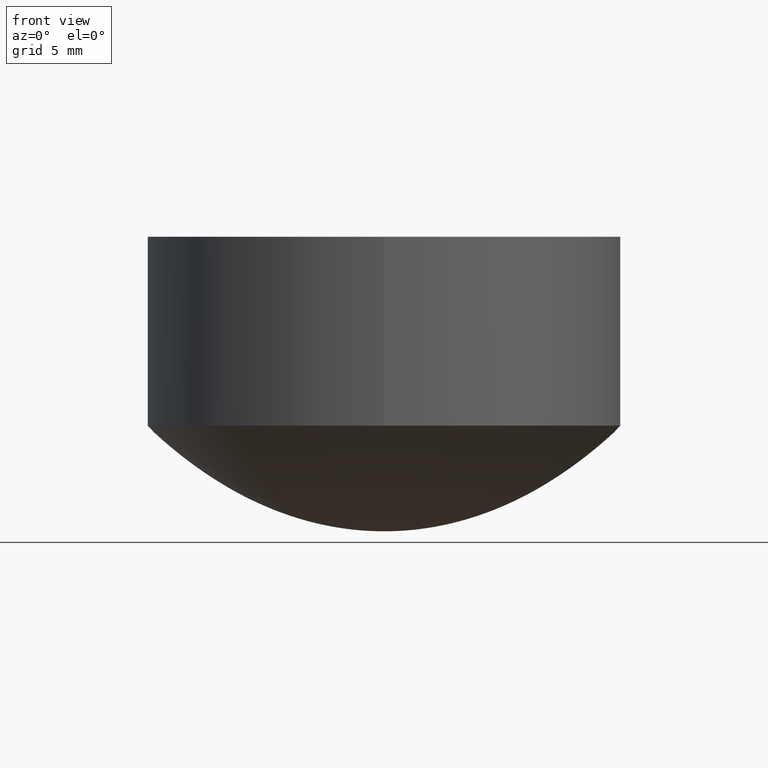
[diagram: clean part render]
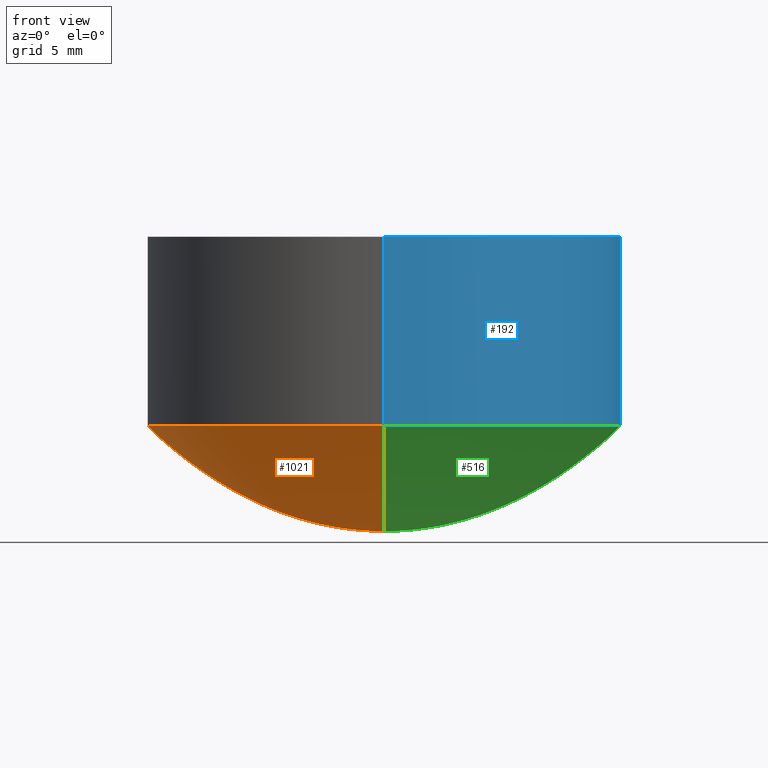
[diagram: same view with three faces highlighted in distinct colors, each labeled with its STEP entity id]
A machine part, front view with three faces highlighted in distinct colors.
Their STEP definitions:

[orange] entity #1021 — the highlighted face is a freeform B-spline surface patch.
#2 = CARTESIAN_POINT ( 'NONE',  ( -3.541666666666658969, 1.770833333333329929, 0.1296785314262489941 ) ) ;
#3 = CARTESIAN_POINT ( 'NONE',  ( -9.439985743427510864E-16, -7.708333333333330373, 2.572066291603280153 ) ) ;
#4 = EDGE_CURVE ( 'NONE', #612, #1050, #966, .T. ) ;
#7 = CARTESIAN_POINT ( 'NONE',  ( -0.4166666666666659080, -0.2083333333333329540, 0.001347474450006550233 ) ) ;
#8 = CARTESIAN_POINT ( 'NONE',  ( 0.000000000000000000, 7.916666666666670515, 2.719436397675010220 ) ) ;
#10 = CARTESIAN_POINT ( 'NONE',  ( -14.79166666666665897, -7.395833333333328596, 2.359535687047790375 ) ) ;
#15 = ORIENTED_EDGE ( 'NONE', *, *, #502, .F. ) ;
#17 = CARTESIAN_POINT ( 'NONE',  ( -7.016205620115047349E-16, -5.729166666666669627, 1.392822079159430126 ) ) ;
#21 = CARTESIAN_POINT ( 'NONE',  ( 0.000000000000000000, 6.458333333333329485, 1.781886451884340028 ) ) ;
#25 = CIRCLE ( 'NONE', #841, 10.00000000000000000 ) ;
#27 = CARTESIAN_POINT ( 'NONE',  ( -7.781609869582143997E-16, -6.354166666666669627, 1.723137042595400015 ) ) ;
#31 = CARTESIAN_POINT ( 'NONE',  ( -7.016205620115047349E-16, -5.729166666666669627, 1.392822079159430126 ) ) ;
#32 = CARTESIAN_POINT ( 'NONE',  ( -12.08333333333333748, -6.041666666666668739, 1.553253137534230222 ) ) ;
#35 = CARTESIAN_POINT ( 'NONE',  ( -1.173619849182879884E-15, -9.583333333333330373, 4.067179373711040213 ) ) ;
#38 = CARTESIAN_POINT ( 'NONE',  ( 0.000000000000000000, 6.041666666666669627, 1.553253137534230000 ) ) ;
#41 = CARTESIAN_POINT ( 'NONE',  ( -1.007782261798343296E-15, -8.229166666666671404, 2.949113617587049596 ) ) ;
#44 = CARTESIAN_POINT ( 'NONE',  ( -4.337290746980213025E-16, -3.541666666666670071, 0.5238560678380840274 ) ) ;
#46 = CARTESIAN_POINT ( 'NONE',  ( -4.847560246624935906E-16, -3.958333333333330373, 0.6560431662808010600 ) ) ;
#48 = CARTESIAN_POINT ( 'NONE',  ( -8.333333333333337478, -4.166666666666668739, 0.7279082924977948732 ) ) ;
#51 = CARTESIAN_POINT ( 'NONE',  ( 0.000000000000000000, 10.00000000000000000, 4.453041101808560498 ) ) ;
#54 = CARTESIAN_POINT ( 'NONE',  ( 0.000000000000000000, 4.270833333333330373, 0.7652913580195519483 ) ) ;
#56 = CARTESIAN_POINT ( 'NONE',  ( 0.000000000000000000, 6.666666666666669627, 1.902615783198849941 ) ) ;
#59 = CARTESIAN_POINT ( 'NONE',  ( -7.708333333333340143, -3.854166666666669183, 0.6215611061819579231 ) ) ;
#62 = CARTESIAN_POINT ( 'NONE',  ( 0.000000000000000000, 5.520833333333329485, 1.291048724878059994 ) ) ;
#65 = CARTESIAN_POINT ( 'NONE',  ( -9.166666666666658969, -4.583333333333329485, 0.8833084373268269562 ) ) ;
#66 = CARTESIAN_POINT ( 'NONE',  ( -3.571886497513117363E-16, -2.916666666666669627, 0.3540344385081470313 ) ) ;
#71 = CARTESIAN_POINT ( 'NONE',  ( -9.695120493249883645E-16, -7.916666666666670515, 2.719436397675010220 ) ) ;
#73 = CARTESIAN_POINT ( 'NONE',  ( -3.954588622246665194E-16, -3.229166666666669627, 0.4347068330843479878 ) ) ;
#76 = CARTESIAN_POINT ( 'NONE',  ( -1.020538999289460554E-16, -0.8333333333333329263, 0.02831304440632370287 ) ) ;
#77 = CARTESIAN_POINT ( 'NONE',  ( -8.929716243782786997E-16, -7.291666666666670515, 2.290945602961560024 ) ) ;
#78 = CARTESIAN_POINT ( 'NONE',  ( 0.000000000000000000, 4.791666666666669627, 0.9669118393377289511 ) ) ;
#80 = CARTESIAN_POINT ( 'NONE',  ( 0.000000000000000000, 0.000000000000000000, 0.000000000000000000 ) ) ;
#81 = CARTESIAN_POINT ( 'NONE',  ( -1.097079424236170219E-15, -8.958333333333330373, 3.526011798903590400 ) ) ;
#84 = CARTESIAN_POINT ( 'NONE',  ( -0.8333333333333338144, 0.4166666666666670737, 0.006738609574719998593 ) ) ;
#87 = CARTESIAN_POINT ( 'NONE',  ( -18.54166666666665719, -9.270833333333328596, 3.791140018424980163 ) ) ;
#90 = CARTESIAN_POINT ( 'NONE',  ( 0.000000000000000000, 9.895833333333328596, 4.354252071786150147 ) ) ;
#93 = CARTESIAN_POINT ( 'NONE',  ( 0.000000000000000000, 3.854166666666669627, 0.6215611061819579231 ) ) ;
#96 = CARTESIAN_POINT ( 'NONE',  ( 0.000000000000000000, 6.979166666666669627, 2.091835607160339894 ) ) ;
#99 = CARTESIAN_POINT ( 'NONE',  ( 0.000000000000000000, 4.479166666666669627, 0.8429914304197799746 ) ) ;
#101 = CARTESIAN_POINT ( 'NONE',  ( -6.633503495381500011E-16, -5.416666666666669627, 1.241707270476970049 ) ) ;
#106 = CARTESIAN_POINT ( 'NONE',  ( -1.199133324165117162E-15, -9.791666666666671404, 4.257330758691119321 ) ) ;
#108 = CARTESIAN_POINT ( 'NONE',  ( -8.674581493960414216E-16, -7.083333333333330373, 2.157095573627930030 ) ) ;
#112 = CARTESIAN_POINT ( 'NONE',  ( -7.398907744848596659E-16, -6.041666666666669627, 1.553253137534230000 ) ) ;
#113 = CARTESIAN_POINT ( 'NONE',  ( -12.70833333333333748, 6.354166666666669627, 1.723137042595400015 ) ) ;
#118 = CARTESIAN_POINT ( 'NONE',  ( -8.291879369226866878E-16, -6.770833333333330373, 1.964595721533149986 ) ) ;
#121 = CARTESIAN_POINT ( 'NONE',  ( -1.160863111691762231E-15, -9.479166666666669627, 3.973949424674720010 ) ) ;
#123 = CARTESIAN_POINT ( 'NONE',  ( -3.699453872424291920E-16, -3.020833333333330373, 0.3799861991336899725 ) ) ;
#129 = CARTESIAN_POINT ( 'NONE',  ( -9.166666666666658969, 4.583333333333329485, 0.8833084373268269562 ) ) ;
#131 = CARTESIAN_POINT ( 'NONE',  ( 0.000000000000000000, 9.479166666666669627, 3.973949424674720010 ) ) ;
#132 = CARTESIAN_POINT ( 'NONE',  ( -2.806482248046021207E-16, -2.291666666666669627, 0.2178407702253380152 ) ) ;
#136 = CARTESIAN_POINT ( 'NONE',  ( 0.000000000000000000, 3.645833333333330373, 0.5554675565208749832 ) ) ;
#138 = CARTESIAN_POINT ( 'NONE',  ( 0.000000000000000000, 8.958333333333330373, 3.526011798903590400 ) ) ;
#142 = CARTESIAN_POINT ( 'NONE',  ( 0.000000000000000000, 2.395833333333329929, 0.2382251336098089867 ) ) ;
#144 = CARTESIAN_POINT ( 'NONE',  ( 0.000000000000000000, 5.833333333333330373, 1.445253986103229860 ) ) ;
#147 = CARTESIAN_POINT ( 'NONE',  ( 0.000000000000000000, 3.020833333333330373, 0.3799861991336899725 ) ) ;
#149 = CARTESIAN_POINT ( 'NONE',  ( 0.000000000000000000, 8.645833333333330373, 3.271671526794619922 ) ) ;
#152 = CARTESIAN_POINT ( 'NONE',  ( 0.000000000000000000, 0.8333333333333329263, 0.02831304440632370287 ) ) ;
#153 = CARTESIAN_POINT ( 'NONE',  ( -16.66666666666665719, -8.333333333333328596, 3.027991142379800049 ) ) ;
#155 = CARTESIAN_POINT ( 'NONE',  ( 0.000000000000000000, 6.770833333333330373, 1.964595721533149986 ) ) ;
#158 = CARTESIAN_POINT ( 'NONE',  ( 0.000000000000000000, 1.354166666666670071, 0.07556978839538459891 ) ) ;
#160 = CARTESIAN_POINT ( 'NONE',  ( -15.41666666666665897, 7.708333333333330373, 2.572066291603280153 ) ) ;
#164 = CARTESIAN_POINT ( 'NONE',  ( -1.666666666666665630, -0.8333333333333328152, 0.02831304440632369940 ) ) ;
#166 = CARTESIAN_POINT ( 'NONE',  ( -18.33333333333333925, 9.166666666666669627, 3.701560634136160211 ) ) ;
#168 = CARTESIAN_POINT ( 'NONE',  ( 0.000000000000000000, 4.583333333333329485, 0.8833084373268269562 ) ) ;
#170 = CARTESIAN_POINT ( 'NONE',  ( 0.000000000000000000, 0.000000000000000000, 0.000000000000000000 ) ) ;
#171 = CARTESIAN_POINT ( 'NONE',  ( -16.45833333333333925, 8.229166666666669627, 2.949113617587049596 ) ) ;
#172 = CARTESIAN_POINT ( 'NONE',  ( 0.000000000000000000, 0.000000000000000000, 0.000000000000000000 ) ) ;
#173 = CARTESIAN_POINT ( 'NONE',  ( 1.224646799147353256E-15, -10.00000000000000000, 4.453041101808560498 ) ) ;
#174 = CARTESIAN_POINT ( 'NONE',  ( 0.000000000000000000, 1.145833333333329929, 0.05395585012404580105 ) ) ;
#176 = CARTESIAN_POINT ( 'NONE',  ( 0.000000000000000000, 8.333333333333330373, 3.027991142379800049 ) ) ;
#179 = CARTESIAN_POINT ( 'NONE',  ( -5.995666620825578906E-16, -4.895833333333330373, 1.010198235510290088 ) ) ;
#182 = CARTESIAN_POINT ( 'NONE',  ( -1.211890061656234420E-15, -9.895833333333328596, 4.354252071786150147 ) ) ;
#183 = CARTESIAN_POINT ( 'NONE',  ( -8.164311994315691335E-16, -6.666666666666669627, 1.902615783198849941 ) ) ;
#186 = CARTESIAN_POINT ( 'NONE',  ( -9.695120493249883645E-16, -7.916666666666670515, 2.719436397675010220 ) ) ;
#187 = CARTESIAN_POINT ( 'NONE',  ( -9.791666666666658969, 4.895833333333330373, 1.010198235510290088 ) ) ;
#190 = CARTESIAN_POINT ( 'NONE',  ( -19.99999999999999645, -9.999999999999998224, 4.453041101808560498 ) ) ;
#191 = CARTESIAN_POINT ( 'NONE',  ( -9.057283618693961554E-16, -7.395833333333329485, 2.359535687047789931 ) ) ;
#194 = CARTESIAN_POINT ( 'NONE',  ( -12.91666666666665364, -6.458333333333326820, 1.781886451884339806 ) ) ;
#198 = CARTESIAN_POINT ( 'NONE',  ( -6.250801370647952673E-16, -5.104166666666669627, 1.099778359623210022 ) ) ;
#200 = CARTESIAN_POINT ( 'NONE',  ( -11.45833333333333748, 5.729166666666669627, 1.392822079159430126 ) ) ;
#205 = CARTESIAN_POINT ( 'NONE',  ( -3.189184372779570025E-16, -2.604166666666670071, 0.2817672239136689849 ) ) ;
#209 = CARTESIAN_POINT ( 'NONE',  ( -3.954588622246665194E-16, -3.229166666666669627, 0.4347068330843479878 ) ) ;
#212 = CARTESIAN_POINT ( 'NONE',  ( -5.102694996447308933E-17, -0.4166666666666670182, 0.006738609574719999461 ) ) ;
#214 = CARTESIAN_POINT ( 'NONE',  ( -7.916666666666658081, -3.958333333333329040, 0.6560431662808010600 ) ) ;
#216 = CARTESIAN_POINT ( 'NONE',  ( -3.699453872424291920E-16, -3.020833333333330373, 0.3799861991336899725 ) ) ;
#219 = CARTESIAN_POINT ( 'NONE',  ( -5.416666666666658969, 2.708333333333329929, 0.3049249506605909432 ) ) ;
#222 = CARTESIAN_POINT ( 'NONE',  ( -3.316751747690744089E-16, -2.708333333333329929, 0.3049249506605909987 ) ) ;
#225 = CARTESIAN_POINT ( 'NONE',  ( -2.934049622957196751E-16, -2.395833333333329929, 0.2382251336098089867 ) ) ;
#228 = CARTESIAN_POINT ( 'NONE',  ( -2.551347498223648427E-16, -2.083333333333330373, 0.1798271342284829821 ) ) ;
#232 = CARTESIAN_POINT ( 'NONE',  ( 0.000000000000000000, 0.000000000000000000, 0.000000000000000000 ) ) ;
#233 = CARTESIAN_POINT ( 'NONE',  ( -14.58333333333333925, -7.291666666666667851, 2.290945602961560024 ) ) ;
#234 = CARTESIAN_POINT ( 'NONE',  ( 0.000000000000000000, 7.708333333333330373, 2.572066291603280153 ) ) ;
#237 = CARTESIAN_POINT ( 'NONE',  ( -2.083333333333339699, -1.041666666666669849, 0.04450622537518500454 ) ) ;
#238 = CARTESIAN_POINT ( 'NONE',  ( -17.08333333333333925, 8.541666666666671404, 3.189270094615299644 ) ) ;
#239 = CARTESIAN_POINT ( 'NONE',  ( 0.000000000000000000, 0.5208333333333330373, 0.01078227045805310071 ) ) ;
#243 = CARTESIAN_POINT ( 'NONE',  ( -2.551347498223648612E-17, -0.2083333333333330095, 0.001347474450006550233 ) ) ;
#244 = CARTESIAN_POINT ( 'NONE',  ( 0.000000000000000000, 9.166666666666669627, 3.701560634136160211 ) ) ;
#245 = CARTESIAN_POINT ( 'NONE',  ( 0.000000000000000000, 0.4166666666666670182, 0.006738609574719999461 ) ) ;
#248 = CARTESIAN_POINT ( 'NONE',  ( 0.000000000000000000, 1.666666666666670071, 0.1147884737324620097 ) ) ;
#249 = CARTESIAN_POINT ( 'NONE',  ( -1.122592899218407497E-15, -9.166666666666669627, 3.701560634136160211 ) ) ;
#251 = CARTESIAN_POINT ( 'NONE',  ( 0.000000000000000000, 0.1041666666666670044, 0.000000000000000000 ) ) ;
#253 = CARTESIAN_POINT ( 'NONE',  ( 0.000000000000000000, 0.000000000000000000, 0.000000000000000000 ) ) ;
#254 = CARTESIAN_POINT ( 'NONE',  ( 0.000000000000000000, 8.541666666666671404, 3.189270094615300088 ) ) ;
#256 = CARTESIAN_POINT ( 'NONE',  ( 0.000000000000000000, 5.104166666666669627, 1.099778359623210022 ) ) ;
#258 = CARTESIAN_POINT ( 'NONE',  ( -11.66666666666665719, 5.833333333333330373, 1.445253986103229860 ) ) ;
#265 = CARTESIAN_POINT ( 'NONE',  ( -12.29166666666665542, 6.145833333333330373, 1.608820391979899789 ) ) ;
#268 = CARTESIAN_POINT ( 'NONE',  ( -19.58333333333333570, 9.791666666666669627, 4.257330758691119321 ) ) ;
#269 = CARTESIAN_POINT ( 'NONE',  ( -9.439985743427510864E-16, -7.708333333333330373, 2.572066291603280153 ) ) ;
#271 = CARTESIAN_POINT ( 'NONE',  ( -13.95833333333333748, 6.979166666666669627, 2.091835607160339894 ) ) ;
#277 = CARTESIAN_POINT ( 'NONE',  ( -11.45833333333333748, -5.729166666666667851, 1.392822079159430126 ) ) ;
#279 = ORIENTED_EDGE ( 'NONE', *, *, #340, .T. ) ;
#281 = CARTESIAN_POINT ( 'NONE',  ( -6.250801370647952673E-16, -5.104166666666669627, 1.099778359623210022 ) ) ;
#286 = CARTESIAN_POINT ( 'NONE',  ( -7.526475119759771216E-16, -6.145833333333330373, 1.608820391979899789 ) ) ;
#288 = CARTESIAN_POINT ( 'NONE',  ( -5.230262371358484230E-16, -4.270833333333330373, 0.7652913580195519483 ) ) ;
#292 = CARTESIAN_POINT ( 'NONE',  ( -7.708333333333338366, 3.854166666666670071, 0.6215611061819579231 ) ) ;
#295 = CARTESIAN_POINT ( 'NONE',  ( -1.403241124023004687E-16, -1.145833333333329929, 0.05395585012404580105 ) ) ;
#297 = CARTESIAN_POINT ( 'NONE',  ( -4.847560246624935906E-16, -3.958333333333330373, 0.6560431662808010600 ) ) ;
#301 = CARTESIAN_POINT ( 'NONE',  ( -1.785943248756552765E-16, -1.458333333333329929, 0.08773410246270030299 ) ) ;
#305 = CARTESIAN_POINT ( 'NONE',  ( -7.083333333333339255, -3.541666666666669183, 0.5238560678380840274 ) ) ;
#307 = CARTESIAN_POINT ( 'NONE',  ( 0.000000000000000000, 7.291666666666670515, 2.290945602961560024 ) ) ;
#309 = CARTESIAN_POINT ( 'NONE',  ( -4.791666666666658969, 2.395833333333330373, 0.2382251336098089867 ) ) ;
#314 = CARTESIAN_POINT ( 'NONE',  ( -2.083333333333339699, 1.041666666666670071, 0.04450622537518500454 ) ) ;
#316 = CARTESIAN_POINT ( 'NONE',  ( 0.000000000000000000, 8.854166666666669627, 3.440042384845479972 ) ) ;
#320 = CARTESIAN_POINT ( 'NONE',  ( -3.333333333333339255, -1.666666666666669627, 0.1147884737324619958 ) ) ;
#321 = CARTESIAN_POINT ( 'NONE',  ( 0.000000000000000000, 8.645833333333330373, 3.271671526794619922 ) ) ;
#324 = CARTESIAN_POINT ( 'NONE',  ( 0.000000000000000000, 2.916666666666669627, 0.3540344385081470313 ) ) ;
#327 = CARTESIAN_POINT ( 'NONE',  ( -2.708333333333339699, -1.354166666666669405, 0.07556978839538459891 ) ) ;
#329 = CARTESIAN_POINT ( 'NONE',  ( 0.000000000000000000, 3.229166666666669627, 0.4347068330843479878 ) ) ;
#331 = CARTESIAN_POINT ( 'NONE',  ( -2.423780123312473869E-16, -1.979166666666669849, 0.1621978615022999781 ) ) ;
#332 = CARTESIAN_POINT ( 'NONE',  ( 0.000000000000000000, 7.395833333333329485, 2.359535687047789931 ) ) ;
#334 = CARTESIAN_POINT ( 'NONE',  ( -0.2083333333333338977, 0.1041666666666669905, 0.000000000000000000 ) ) ;
#335 = CARTESIAN_POINT ( 'NONE',  ( -1.046052474271698227E-15, -8.541666666666671404, 3.189270094615300088 ) ) ;
#336 = CARTESIAN_POINT ( 'NONE',  ( 0.000000000000000000, 0.7291666666666670737, 0.02156948768065080138 ) ) ;
#340 = EDGE_CURVE ( 'NONE', #782, #1050, #453, .T. ) ;
#341 = CARTESIAN_POINT ( 'NONE',  ( 0.000000000000000000, 7.291666666666670515, 2.290945602961560024 ) ) ;
#343 = DIRECTION ( 'NONE',  ( 0.000000000000000000, 0.000000000000000000, 1.000000000000000000 ) ) ;
#347 = CARTESIAN_POINT ( 'NONE',  ( 0.000000000000000000, 4.583333333333329485, 0.8833084373268269562 ) ) ;
#352 = CARTESIAN_POINT ( 'NONE',  ( -19.79166666666665719, 9.895833333333328596, 4.354252071786150147 ) ) ;
#353 = CARTESIAN_POINT ( 'NONE',  ( -7.143772995026222892E-16, -5.833333333333330373, 1.445253986103229860 ) ) ;
#360 = CARTESIAN_POINT ( 'NONE',  ( -1.058809211762815288E-15, -8.645833333333330373, 3.271671526794619922 ) ) ;
#361 = CARTESIAN_POINT ( 'NONE',  ( -12.91666666666665364, 6.458333333333329485, 1.781886451884339806 ) ) ;
#365 = CARTESIAN_POINT ( 'NONE',  ( -19.16666666666665719, -9.583333333333328596, 4.067179373711040213 ) ) ;
#366 = CARTESIAN_POINT ( 'NONE',  ( -6.761070870292675554E-16, -5.520833333333329485, 1.291048724878059994 ) ) ;
#368 = CARTESIAN_POINT ( 'NONE',  ( -7.526475119759771216E-16, -6.145833333333330373, 1.608820391979899789 ) ) ;
#371 = CARTESIAN_POINT ( 'NONE',  ( -1.173619849182879884E-15, -9.583333333333330373, 4.067179373711040213 ) ) ;
#372 = CARTESIAN_POINT ( 'NONE',  ( -1.020538999289460554E-15, -8.333333333333330373, 3.027991142379800049 ) ) ;
#374 = CARTESIAN_POINT ( 'NONE',  ( 0.000000000000000000, 5.104166666666669627, 1.099778359623210022 ) ) ;
#378 = CARTESIAN_POINT ( 'NONE',  ( -9.822687868161056230E-16, -8.020833333333328596, 2.794836252624639972 ) ) ;
#380 = CARTESIAN_POINT ( 'NONE',  ( -5.833333333333339255, -2.916666666666669183, 0.3540344385081470313 ) ) ;
#383 = CARTESIAN_POINT ( 'NONE',  ( -4.719992871713760363E-16, -3.854166666666669627, 0.6215611061819579231 ) ) ;
#385 = CARTESIAN_POINT ( 'NONE',  ( -6.666666666666658081, 3.333333333333329929, 0.4634757056698839972 ) ) ;
#387 = CARTESIAN_POINT ( 'NONE',  ( -2.551347498223648612E-17, -0.2083333333333330095, 0.001347474450006550233 ) ) ;
#389 = CARTESIAN_POINT ( 'NONE',  ( -4.082155997157840244E-16, -3.333333333333329929, 0.4634757056698839972 ) ) ;
#390 = CARTESIAN_POINT ( 'NONE',  ( 0.000000000000000000, 6.458333333333329485, 1.781886451884340028 ) ) ;
#393 = CARTESIAN_POINT ( 'NONE',  ( -6.458333333333337478, -3.229166666666668739, 0.4347068330843479878 ) ) ;
#396 = CARTESIAN_POINT ( 'NONE',  ( 0.000000000000000000, 0.000000000000000000, 0.000000000000000000 ) ) ;
#399 = CARTESIAN_POINT ( 'NONE',  ( -0.8333333333333338144, -0.4166666666666669072, 0.006738609574719998593 ) ) ;
#402 = CARTESIAN_POINT ( 'NONE',  ( 0.000000000000000000, 9.479166666666669627, 3.973949424674720010 ) ) ;
#406 = CARTESIAN_POINT ( 'NONE',  ( -16.04166666666665719, 8.020833333333330373, 2.794836252624639972 ) ) ;
#408 = CARTESIAN_POINT ( 'NONE',  ( -8.929716243782788476E-17, -0.7291666666666670737, 0.02156948768065080138 ) ) ;
#412 = CARTESIAN_POINT ( 'NONE',  ( -1.041666666666665853, -0.5208333333333329263, 0.01078227045805310071 ) ) ;
#416 = CARTESIAN_POINT ( 'NONE',  ( -2.916666666666658969, -1.458333333333329485, 0.08773410246270030299 ) ) ;
#418 = CARTESIAN_POINT ( 'NONE',  ( 0.000000000000000000, 8.854166666666669627, 3.440042384845479972 ) ) ;
#421 = CARTESIAN_POINT ( 'NONE',  ( -1.275673749111830315E-17, -0.1041666666666670044, 0.000000000000000000 ) ) ;
#422 = CARTESIAN_POINT ( 'NONE',  ( 0.000000000000000000, 8.229166666666671404, 2.949113617587049596 ) ) ;
#424 = CARTESIAN_POINT ( 'NONE',  ( 0.000000000000000000, 0.000000000000000000, 4.453041101808560498 ) ) ;
#429 = CARTESIAN_POINT ( 'NONE',  ( 0.000000000000000000, 2.291666666666669627, 0.2178407702253380152 ) ) ;
#430 = CARTESIAN_POINT ( 'NONE',  ( 0.000000000000000000, 10.00000000000000000, 4.453041101808560498 ) ) ;
#431 = CARTESIAN_POINT ( 'NONE',  ( 0.000000000000000000, 4.791666666666669627, 0.9669118393377289511 ) ) ;
#433 = CARTESIAN_POINT ( 'NONE',  ( 0.000000000000000000, 9.791666666666671404, 4.257330758691119321 ) ) ;
#434 = CARTESIAN_POINT ( 'NONE',  ( 0.000000000000000000, 5.416666666666669627, 1.241707270476970049 ) ) ;
#438 = CARTESIAN_POINT ( 'NONE',  ( 0.000000000000000000, 9.583333333333330373, 4.067179373711040213 ) ) ;
#439 = CARTESIAN_POINT ( 'NONE',  ( -1.211890061656234420E-15, -9.895833333333328596, 4.354252071786150147 ) ) ;
#440 = CARTESIAN_POINT ( 'NONE',  ( 0.000000000000000000, 6.145833333333330373, 1.608820391979899789 ) ) ;
#445 = CARTESIAN_POINT ( 'NONE',  ( -8.929716243782786997E-16, -7.291666666666670515, 2.290945602961560024 ) ) ;
#447 = CARTESIAN_POINT ( 'NONE',  ( -12.70833333333333748, -6.354166666666668739, 1.723137042595400015 ) ) ;
#452 = CARTESIAN_POINT ( 'NONE',  ( -10.20833333333333925, -5.104166666666669627, 1.099778359623210022 ) ) ;
#453 = B_SPLINE_CURVE_WITH_KNOTS ( 'NONE', 3,
 ( #51, #1064, #982, #554, #402, #731, #900, #138, #316, #149, #481, #560, #743, #661, #1080, #234, #1002, #473, #307, #818, #654, #155, #56, #390, #646, #991, #906, #144, #826, #62, #736, #1074, #256, #1012, #78, #168, #99, #577, #514, #504, #93, #749, #845, #1084, #329, #601, #324, #678, #666, #859, #429, #671, #494, #933, #1007, #588, #1018, #850, #927, #1028, #336, #239, #245, #769, #251, #172 ),
 .UNSPECIFIED., .F., .F.,
 ( 4, 2, 2, 2, 2, 2, 2, 2, 2, 2, 2, 2, 2, 2, 2, 2, 2, 2, 2, 2, 2, 2, 2, 2, 2, 2, 2, 2, 2, 2, 2, 2, 4 ),
 ( -1.000000000000000000, -0.9687500000000000000, -0.9375000000000000000, -0.9062500000000000000, -0.8750000000000000000, -0.8437500000000000000, -0.8125000000000000000, -0.7812500000000000000, -0.7500000000000000000, -0.7187500000000000000, -0.6875000000000000000, -0.6562500000000000000, -0.6250000000000000000, -0.5937500000000000000, -0.5625000000000000000, -0.5312500000000000000, -0.5000000000000000000, -0.4687500000000000000, -0.4375000000000000000, -0.4062500000000000000, -0.3750000000000000000, -0.3437500000000000000, -0.3125000000000000000, -0.2812500000000000000, -0.2500000000000000000, -0.2187500000000000000, -0.1875000000000000000, -0.1562500000000000000, -0.1250000000000000000, -0.09375000000000000000, -0.06250000000000000000, -0.03125000000000000000, 0.000000000000000000 ),
 .UNSPECIFIED. ) ;
#456 = CARTESIAN_POINT ( 'NONE',  ( -18.95833333333333925, 9.479166666666671404, 3.973949424674720010 ) ) ;
#457 = CARTESIAN_POINT ( 'NONE',  ( -8.291879369226866878E-16, -6.770833333333330373, 1.964595721533149986 ) ) ;
#460 = CARTESIAN_POINT ( 'NONE',  ( -8.333333333333337478, 4.166666666666669627, 0.7279082924977948732 ) ) ;
#462 = ORIENTED_EDGE ( 'NONE', *, *, #4, .F. ) ;
#464 = CARTESIAN_POINT ( 'NONE',  ( 0.000000000000000000, 3.229166666666669627, 0.4347068330843479878 ) ) ;
#467 = CARTESIAN_POINT ( 'NONE',  ( -2.423780123312473869E-16, -1.979166666666669849, 0.1621978615022999781 ) ) ;
#470 = CARTESIAN_POINT ( 'NONE',  ( 0.000000000000000000, 4.479166666666669627, 0.8429914304197799746 ) ) ;
#473 = CARTESIAN_POINT ( 'NONE',  ( 0.000000000000000000, 7.395833333333329485, 2.359535687047789931 ) ) ;
#476 = CARTESIAN_POINT ( 'NONE',  ( -8.958333333333337478, 4.479166666666669627, 0.8429914304197800856 ) ) ;
#478 = CARTESIAN_POINT ( 'NONE',  ( -3.189184372779570025E-16, -2.604166666666670071, 0.2817672239136689849 ) ) ;
#480 = CARTESIAN_POINT ( 'NONE',  ( -4.583333333333339255, -2.291666666666669627, 0.2178407702253379874 ) ) ;
#481 = CARTESIAN_POINT ( 'NONE',  ( 0.000000000000000000, 8.541666666666671404, 3.189270094615300088 ) ) ;
#484 = CARTESIAN_POINT ( 'NONE',  ( -1.458333333333333925, 0.7291666666666670737, 0.02156948768065080485 ) ) ;
#485 = CARTESIAN_POINT ( 'NONE',  ( -16.45833333333333925, -8.229166666666669627, 2.949113617587049596 ) ) ;
#490 = CARTESIAN_POINT ( 'NONE',  ( -1.658375873845378207E-16, -1.354166666666670071, 0.07556978839538459891 ) ) ;
#491 = CARTESIAN_POINT ( 'NONE',  ( -15.20833333333333748, -7.604166666666667851, 2.500096020473030034 ) ) ;
#494 = CARTESIAN_POINT ( 'NONE',  ( 0.000000000000000000, 1.979166666666669849, 0.1621978615022999781 ) ) ;
#496 = CARTESIAN_POINT ( 'NONE',  ( 0.000000000000000000, 0.7291666666666670737, 0.02156948768065080138 ) ) ;
#498 = CARTESIAN_POINT ( 'NONE',  ( 0.000000000000000000, 9.270833333333330373, 3.791140018424980163 ) ) ;
#500 = CARTESIAN_POINT ( 'NONE',  ( -2.916666666666658969, 1.458333333333329929, 0.08773410246270030299 ) ) ;
#501 = CARTESIAN_POINT ( 'NONE',  ( -1.058809211762815288E-15, -8.645833333333330373, 3.271671526794619922 ) ) ;
#502 = EDGE_CURVE ( 'NONE', #782, #612, #25, .T. ) ;
#504 = CARTESIAN_POINT ( 'NONE',  ( 0.000000000000000000, 3.958333333333330373, 0.6560431662808010600 ) ) ;
#506 = CARTESIAN_POINT ( 'NONE',  ( -1.666666666666665630, 0.8333333333333329263, 0.02831304440632369940 ) ) ;
#508 = CARTESIAN_POINT ( 'NONE',  ( -1.020538999289460554E-15, -8.333333333333330373, 3.027991142379800049 ) ) ;
#512 = CARTESIAN_POINT ( 'NONE',  ( -9.583333333333337478, -4.791666666666668739, 0.9669118393377288401 ) ) ;
#514 = CARTESIAN_POINT ( 'NONE',  ( 0.000000000000000000, 4.166666666666670515, 0.7279082924977949842 ) ) ;
#519 = CARTESIAN_POINT ( 'NONE',  ( -10.83333333333333748, 5.416666666666669627, 1.241707270476970049 ) ) ;
#521 = CARTESIAN_POINT ( 'NONE',  ( -19.58333333333333570, -9.791666666666667851, 4.257330758691119321 ) ) ;
#522 = CARTESIAN_POINT ( 'NONE',  ( -4.464858121891388568E-16, -3.645833333333330373, 0.5554675565208749832 ) ) ;
#523 = CARTESIAN_POINT ( 'NONE',  ( -9.583333333333337478, 4.791666666666669627, 0.9669118393377288401 ) ) ;
#527 = CARTESIAN_POINT ( 'NONE',  ( -1.135349636709525150E-15, -9.270833333333330373, 3.791140018424980163 ) ) ;
#528 = CARTESIAN_POINT ( 'NONE',  ( -8.547014119049239659E-16, -6.979166666666669627, 2.091835607160339894 ) ) ;
#530 = CARTESIAN_POINT ( 'NONE',  ( -5.868099245914404349E-16, -4.791666666666669627, 0.9669118393377289511 ) ) ;
#532 = CARTESIAN_POINT ( 'NONE',  ( -10.20833333333333925, 5.104166666666670515, 1.099778359623210022 ) ) ;
#537 = CARTESIAN_POINT ( 'NONE',  ( -5.612964496092031568E-16, -4.583333333333329485, 0.8833084373268269562 ) ) ;
#540 = CARTESIAN_POINT ( 'NONE',  ( -5.995666620825578906E-16, -4.895833333333330373, 1.010198235510290088 ) ) ;
#542 = CARTESIAN_POINT ( 'NONE',  ( 0.000000000000000000, 3.541666666666670071, 0.5238560678380840274 ) ) ;
#550 = CARTESIAN_POINT ( 'NONE',  ( -7.291666666666659857, -3.645833333333329929, 0.5554675565208749832 ) ) ;
#554 = CARTESIAN_POINT ( 'NONE',  ( 0.000000000000000000, 9.583333333333330373, 4.067179373711040213 ) ) ;
#557 = CARTESIAN_POINT ( 'NONE',  ( -3.316751747690744089E-16, -2.708333333333329929, 0.3049249506605909987 ) ) ;
#560 = CARTESIAN_POINT ( 'NONE',  ( 0.000000000000000000, 8.333333333333330373, 3.027991142379800049 ) ) ;
#563 = CARTESIAN_POINT ( 'NONE',  ( 0.000000000000000000, 2.291666666666669627, 0.2178407702253380152 ) ) ;
#567 = CARTESIAN_POINT ( 'NONE',  ( -1.275673749111830315E-17, -0.1041666666666670044, 0.000000000000000000 ) ) ;
#570 = CARTESIAN_POINT ( 'NONE',  ( -3.958333333333338810, -1.979166666666669405, 0.1621978615022999781 ) ) ;
#571 = CARTESIAN_POINT ( 'NONE',  ( -1.084322686745052763E-15, -8.854166666666669627, 3.440042384845479972 ) ) ;
#575 = CARTESIAN_POINT ( 'NONE',  ( -4.166666666666659857, 2.083333333333330373, 0.1798271342284829821 ) ) ;
#576 = CARTESIAN_POINT ( 'NONE',  ( -1.007782261798343296E-15, -8.229166666666671404, 2.949113617587049596 ) ) ;
#577 = CARTESIAN_POINT ( 'NONE',  ( 0.000000000000000000, 4.270833333333330373, 0.7652913580195519483 ) ) ;
#579 = CARTESIAN_POINT ( 'NONE',  ( 0.000000000000000000, 1.979166666666669849, 0.1621978615022999781 ) ) ;
#580 = CARTESIAN_POINT ( 'NONE',  ( 0.000000000000000000, 8.958333333333330373, 3.526011798903590400 ) ) ;
#584 = CARTESIAN_POINT ( 'NONE',  ( -2.291666666666659413, -1.145833333333329707, 0.05395585012404579411 ) ) ;
#586 = CARTESIAN_POINT ( 'NONE',  ( -17.91666666666665719, 8.958333333333330373, 3.526011798903590400 ) ) ;
#588 = CARTESIAN_POINT ( 'NONE',  ( 0.000000000000000000, 1.458333333333329929, 0.08773410246270030299 ) ) ;
#590 = CARTESIAN_POINT ( 'NONE',  ( 0.000000000000000000, 0.000000000000000000, 0.000000000000000000 ) ) ;
#591 = CARTESIAN_POINT ( 'NONE',  ( -9.312418368516334335E-16, -7.604166666666669627, 2.500096020473030034 ) ) ;
#597 = CARTESIAN_POINT ( 'NONE',  ( 0.000000000000000000, 6.770833333333330373, 1.964595721533149986 ) ) ;
#601 = CARTESIAN_POINT ( 'NONE',  ( 0.000000000000000000, 3.020833333333330373, 0.3799861991336899725 ) ) ;
#603 = FACE_OUTER_BOUND ( 'NONE', #1015, .T. ) ;
#607 = CARTESIAN_POINT ( 'NONE',  ( -7.398907744848596659E-16, -6.041666666666669627, 1.553253137534230000 ) ) ;
#612 = VERTEX_POINT ( 'NONE', #173 ) ;
#613 = CARTESIAN_POINT ( 'NONE',  ( -10.41666666666665897, 5.208333333333330373, 1.146072090138779975 ) ) ;
#617 = CARTESIAN_POINT ( 'NONE',  ( -8.547014119049239659E-16, -6.979166666666669627, 2.091835607160339894 ) ) ;
#618 = CARTESIAN_POINT ( 'NONE',  ( 0.000000000000000000, 5.520833333333329485, 1.291048724878059994 ) ) ;
#621 = CARTESIAN_POINT ( 'NONE',  ( -1.199133324165117162E-15, -9.791666666666671404, 4.257330758691119321 ) ) ;
#623 = CARTESIAN_POINT ( 'NONE',  ( -14.16666666666666075, -7.083333333333328596, 2.157095573627929586 ) ) ;
#627 = CARTESIAN_POINT ( 'NONE',  ( -5.485397121180857011E-16, -4.479166666666669627, 0.8429914304197799746 ) ) ;
#629 = CARTESIAN_POINT ( 'NONE',  ( -5.485397121180857011E-16, -4.479166666666669627, 0.8429914304197799746 ) ) ;
#631 = CARTESIAN_POINT ( 'NONE',  ( -7.909177244493318554E-16, -6.458333333333329485, 1.781886451884340028 ) ) ;
#633 = CARTESIAN_POINT ( 'NONE',  ( -4.719992871713760363E-16, -3.854166666666669627, 0.6215611061819579231 ) ) ;
#636 = CARTESIAN_POINT ( 'NONE',  ( -19.16666666666665719, 9.583333333333332149, 4.067179373711040213 ) ) ;
#637 = CARTESIAN_POINT ( 'NONE',  ( -2.934049622957196751E-16, -2.395833333333329929, 0.2382251336098089867 ) ) ;
#639 = CARTESIAN_POINT ( 'NONE',  ( 0.000000000000000000, 2.604166666666670071, 0.2817672239136689849 ) ) ;
#641 = CARTESIAN_POINT ( 'NONE',  ( -6.378368745559127230E-17, -0.5208333333333330373, 0.01078227045805310071 ) ) ;
#643 = CARTESIAN_POINT ( 'NONE',  ( 0.000000000000000000, 2.708333333333329929, 0.3049249506605909987 ) ) ;
#646 = CARTESIAN_POINT ( 'NONE',  ( 0.000000000000000000, 6.354166666666669627, 1.723137042595400015 ) ) ;
#650 = CARTESIAN_POINT ( 'NONE',  ( -4.791666666666658969, -2.395833333333329485, 0.2382251336098089867 ) ) ;
#654 = CARTESIAN_POINT ( 'NONE',  ( 0.000000000000000000, 6.979166666666669627, 2.091835607160339894 ) ) ;
#657 = CARTESIAN_POINT ( 'NONE',  ( 0.000000000000000000, 0.1041666666666670044, 0.000000000000000000 ) ) ;
#661 = CARTESIAN_POINT ( 'NONE',  ( 0.000000000000000000, 8.020833333333328596, 2.794836252624639972 ) ) ;
#664 = CARTESIAN_POINT ( 'NONE',  ( 0.000000000000000000, 1.770833333333329929, 0.1296785314262489941 ) ) ;
#665 = CARTESIAN_POINT ( 'NONE',  ( -15.83333333333333748, 7.916666666666671404, 2.719436397675010220 ) ) ;
#666 = CARTESIAN_POINT ( 'NONE',  ( 0.000000000000000000, 2.604166666666670071, 0.2817672239136689849 ) ) ;
#669 = CARTESIAN_POINT ( 'NONE',  ( -2.708333333333339699, 1.354166666666670071, 0.07556978839538459891 ) ) ;
#670 = CARTESIAN_POINT ( 'NONE',  ( -1.135349636709525150E-15, -9.270833333333330373, 3.791140018424980163 ) ) ;
#671 = CARTESIAN_POINT ( 'NONE',  ( 0.000000000000000000, 2.083333333333330373, 0.1798271342284829821 ) ) ;
#675 = CARTESIAN_POINT ( 'NONE',  ( -1.041666666666665853, 0.5208333333333330373, 0.01078227045805310071 ) ) ;
#676 = CARTESIAN_POINT ( 'NONE',  ( -17.08333333333333925, -8.541666666666669627, 3.189270094615299644 ) ) ;
#678 = CARTESIAN_POINT ( 'NONE',  ( 0.000000000000000000, 2.708333333333329929, 0.3049249506605909987 ) ) ;
#680 = CARTESIAN_POINT ( 'NONE',  ( -1.275673749111830623E-16, -1.041666666666670071, 0.04450622537518500454 ) ) ;
#682 = CARTESIAN_POINT ( 'NONE',  ( 0.000000000000000000, 7.604166666666669627, 2.500096020473030034 ) ) ;
#685 = CARTESIAN_POINT ( 'NONE',  ( -14.58333333333333570, 7.291666666666669627, 2.290945602961560024 ) ) ;
#690 = CARTESIAN_POINT ( 'NONE',  ( -7.909177244493318554E-16, -6.458333333333329485, 1.781886451884340028 ) ) ;
#696 = CARTESIAN_POINT ( 'NONE',  ( -11.04166666666665719, 5.520833333333329485, 1.291048724878059994 ) ) ;
#700 = CARTESIAN_POINT ( 'NONE',  ( -1.122592899218407497E-15, -9.166666666666669627, 3.701560634136160211 ) ) ;
#701 = CARTESIAN_POINT ( 'NONE',  ( -12.29166666666665542, -6.145833333333327708, 1.608820391979899789 ) ) ;
#709 = CARTESIAN_POINT ( 'NONE',  ( -10.83333333333333748, -5.416666666666666963, 1.241707270476970049 ) ) ;
#711 = CARTESIAN_POINT ( 'NONE',  ( -9.312418368516334335E-16, -7.604166666666669627, 2.500096020473030034 ) ) ;
#713 = CARTESIAN_POINT ( 'NONE',  ( -7.291666666666659857, 3.645833333333330817, 0.5554675565208749832 ) ) ;
#717 = CARTESIAN_POINT ( 'NONE',  ( -5.102694996447308687E-16, -4.166666666666670515, 0.7279082924977949842 ) ) ;
#719 = CARTESIAN_POINT ( 'NONE',  ( -1.084322686745052763E-15, -8.854166666666669627, 3.440042384845479972 ) ) ;
#722 = CARTESIAN_POINT ( 'NONE',  ( -6.666666666666658081, -3.333333333333329040, 0.4634757056698839972 ) ) ;
#725 = CARTESIAN_POINT ( 'NONE',  ( -4.082155997157840244E-16, -3.333333333333329929, 0.4634757056698839972 ) ) ;
#728 = CARTESIAN_POINT ( 'NONE',  ( -6.041666666666658081, -3.020833333333329040, 0.3799861991336899170 ) ) ;
#731 = CARTESIAN_POINT ( 'NONE',  ( 0.000000000000000000, 9.270833333333330373, 3.791140018424980163 ) ) ;
#734 = CARTESIAN_POINT ( 'NONE',  ( -6.041666666666658081, 3.020833333333330373, 0.3799861991336899170 ) ) ;
#736 = CARTESIAN_POINT ( 'NONE',  ( 0.000000000000000000, 5.416666666666669627, 1.241707270476970049 ) ) ;
#739 = CARTESIAN_POINT ( 'NONE',  ( -1.785943248756552765E-16, -1.458333333333329929, 0.08773410246270030299 ) ) ;
#743 = CARTESIAN_POINT ( 'NONE',  ( 0.000000000000000000, 8.229166666666671404, 2.949113617587049596 ) ) ;
#749 = CARTESIAN_POINT ( 'NONE',  ( 0.000000000000000000, 3.645833333333330373, 0.5554675565208749832 ) ) ;
#751 = CARTESIAN_POINT ( 'NONE',  ( -2.168645373490100596E-16, -1.770833333333329929, 0.1296785314262489941 ) ) ;
#752 = CARTESIAN_POINT ( 'NONE',  ( 0.000000000000000000, 7.708333333333330373, 2.572066291603280153 ) ) ;
#756 = CARTESIAN_POINT ( 'NONE',  ( 0.000000000000000000, 0.4166666666666670182, 0.006738609574719999461 ) ) ;
#757 = CARTESIAN_POINT ( 'NONE',  ( 0.000000000000000000, 8.020833333333328596, 2.794836252624639972 ) ) ;
#761 = CARTESIAN_POINT ( 'NONE',  ( 0.000000000000000000, 0.2083333333333330095, 0.001347474450006550233 ) ) ;
#762 = CARTESIAN_POINT ( 'NONE',  ( -16.04166666666665719, -8.020833333333328596, 2.794836252624639972 ) ) ;
#767 = CARTESIAN_POINT ( 'NONE',  ( -17.91666666666665719, -8.958333333333328596, 3.526011798903590400 ) ) ;
#769 = CARTESIAN_POINT ( 'NONE',  ( 0.000000000000000000, 0.2083333333333330095, 0.001347474450006550233 ) ) ;
#772 = CARTESIAN_POINT ( 'NONE',  ( -13.54166666666665542, -6.770833333333327708, 1.964595721533150208 ) ) ;
#777 = CARTESIAN_POINT ( 'NONE',  ( 0.000000000000000000, 5.208333333333330373, 1.146072090138779975 ) ) ;
#782 = VERTEX_POINT ( 'NONE', #856 ) ;
#784 = CARTESIAN_POINT ( 'NONE',  ( -13.95833333333333748, -6.979166666666668739, 2.091835607160339894 ) ) ;
#790 = CARTESIAN_POINT ( 'NONE',  ( -1.097079424236170219E-15, -8.958333333333330373, 3.526011798903590400 ) ) ;
#792 = CARTESIAN_POINT ( 'NONE',  ( -6.761070870292675554E-16, -5.520833333333329485, 1.291048724878059994 ) ) ;
#794 =( BOUNDED_SURFACE ( )  B_SPLINE_SURFACE ( 3, 3, ( 
 ( #430, #1029, #190, #870 ),
 ( #90, #352, #947, #182 ),
 ( #433, #268, #521, #106 ),
 ( #438, #636, #365, #371 ),
 ( #131, #456, #936, #844 ),
 ( #498, #848, #87, #670 ),
 ( #244, #166, #1010, #249 ),
 ( #580, #586, #767, #81 ),
 ( #418, #922, #932, #571 ),
 ( #321, #1082, #916, #501 ),
 ( #254, #238, #676, #335 ),
 ( #176, #852, #153, #508 ),
 ( #422, #171, #485, #576 ),
 ( #757, #406, #762, #834 ),
 ( #8, #665, #926, #71 ),
 ( #752, #160, #1006, #3 ),
 ( #682, #1022, #491, #591 ),
 ( #332, #1017, #10, #839 ),
 ( #341, #685, #233, #77 ),
 ( #1085, #948, #623, #108 ),
 ( #96, #271, #784, #528 ),
 ( #597, #1032, #772, #118 ),
 ( #878, #962, #1025, #183 ),
 ( #21, #361, #194, #690 ),
 ( #872, #113, #447, #27 ),
 ( #440, #265, #701, #368 ),
 ( #38, #798, #32, #607 ),
 ( #1043, #258, #867, #353 ),
 ( #862, #200, #277, #17 ),
 ( #618, #696, #1038, #792 ),
 ( #434, #519, #709, #101 ),
 ( #777, #613, #956, #1048 ),
 ( #374, #532, #452, #281 ),
 ( #967, #187, #942, #179 ),
 ( #431, #523, #512, #857 ),
 ( #347, #129, #65, #537 ),
 ( #470, #476, #822, #629 ),
 ( #54, #803, #1053, #288 ),
 ( #987, #460, #48, #717 ),
 ( #1057, #1067, #214, #297 ),
 ( #897, #292, #59, #633 ),
 ( #136, #713, #550, #811 ),
 ( #542, #993, #305, #44 ),
 ( #816, #385, #722, #389 ),
 ( #464, #975, #393, #209 ),
 ( #147, #734, #728, #123 ),
 ( #972, #889, #380, #1072 ),
 ( #643, #219, #1062, #557 ),
 ( #639, #980, #903, #205 ),
 ( #142, #309, #650, #225 ),
 ( #563, #909, #480, #829 ),
 ( #884, #575, #935, #1016 ),
 ( #579, #925, #570, #331 ),
 ( #664, #2, #915, #751 ),
 ( #248, #921, #320, #998 ),
 ( #930, #500, #416, #739 ),
 ( #158, #669, #327, #490 ),
 ( #174, #1009, #584, #847 ),
 ( #1078, #314, #237, #680 ),
 ( #152, #506, #164, #76 ),
 ( #496, #484, #837, #1005 ),
 ( #851, #675, #412, #910 ),
 ( #756, #84, #399, #1020 ),
 ( #761, #833, #7, #243 ),
 ( #657, #334, #843, #421 ),
 ( #253, #80, #170, #590 ) ),
 .UNSPECIFIED., .F., .F., .T. ) 
 B_SPLINE_SURFACE_WITH_KNOTS ( ( 4, 2, 2, 2, 2, 2, 2, 2, 2, 2, 2, 2, 2, 2, 2, 2, 2, 2, 2, 2, 2, 2, 2, 2, 2, 2, 2, 2, 2, 2, 2, 2, 4 ),
 ( 4, 4 ),
 ( -1.000000000000000000, -0.9687500000000000000, -0.9375000000000000000, -0.9062500000000000000, -0.8750000000000000000, -0.8437500000000000000, -0.8125000000000000000, -0.7812500000000000000, -0.7500000000000000000, -0.7187500000000000000, -0.6875000000000000000, -0.6562500000000000000, -0.6250000000000000000, -0.5937500000000000000, -0.5625000000000000000, -0.5312500000000000000, -0.5000000000000000000, -0.4687500000000000000, -0.4375000000000000000, -0.4062500000000000000, -0.3750000000000000000, -0.3437500000000000000, -0.3125000000000000000, -0.2812500000000000000, -0.2500000000000000000, -0.2187500000000000000, -0.1875000000000000000, -0.1562500000000000000, -0.1250000000000000000, -0.09375000000000000000, -0.06250000000000000000, -0.03125000000000000000, 0.000000000000000000 ),
 ( 0.000000000000000000, 1.000000000000000000 ),
 .UNSPECIFIED. ) 
 GEOMETRIC_REPRESENTATION_ITEM ( )  RATIONAL_B_SPLINE_SURFACE ( (
 ( 1.000000000000000000, 0.3333333333333334259, 0.3333333333333334259, 1.000000000000000000),
 ( 1.000000000000000000, 0.3333333333333334259, 0.3333333333333334259, 1.000000000000000000),
 ( 1.000000000000000000, 0.3333333333333334259, 0.3333333333333334259, 1.000000000000000000),
 ( 1.000000000000000000, 0.3333333333333334259, 0.3333333333333334259, 1.000000000000000000),
 ( 1.000000000000000000, 0.3333333333333334259, 0.3333333333333334259, 1.000000000000000000),
 ( 1.000000000000000000, 0.3333333333333334259, 0.3333333333333334259, 1.000000000000000000),
 ( 1.000000000000000000, 0.3333333333333334259, 0.3333333333333334259, 1.000000000000000000),
 ( 1.000000000000000000, 0.3333333333333334259, 0.3333333333333334259, 1.000000000000000000),
 ( 1.000000000000000000, 0.3333333333333334259, 0.3333333333333334259, 1.000000000000000000),
 ( 1.000000000000000000, 0.3333333333333334259, 0.3333333333333334259, 1.000000000000000000),
 ( 1.000000000000000000, 0.3333333333333334259, 0.3333333333333334259, 1.000000000000000000),
 ( 1.000000000000000000, 0.3333333333333334259, 0.3333333333333334259, 1.000000000000000000),
 ( 1.000000000000000000, 0.3333333333333334259, 0.3333333333333334259, 1.000000000000000000),
 ( 1.000000000000000000, 0.3333333333333334259, 0.3333333333333334259, 1.000000000000000000),
 ( 1.000000000000000000, 0.3333333333333334259, 0.3333333333333334259, 1.000000000000000000),
 ( 1.000000000000000000, 0.3333333333333334259, 0.3333333333333334259, 1.000000000000000000),
 ( 1.000000000000000000, 0.3333333333333334259, 0.3333333333333334259, 1.000000000000000000),
 ( 1.000000000000000000, 0.3333333333333334259, 0.3333333333333334259, 1.000000000000000000),
 ( 1.000000000000000000, 0.3333333333333334259, 0.3333333333333334259, 1.000000000000000000),
 ( 1.000000000000000000, 0.3333333333333334259, 0.3333333333333334259, 1.000000000000000000),
 ( 1.000000000000000000, 0.3333333333333334259, 0.3333333333333334259, 1.000000000000000000),
 ( 1.000000000000000000, 0.3333333333333334259, 0.3333333333333334259, 1.000000000000000000),
 ( 1.000000000000000000, 0.3333333333333334259, 0.3333333333333334259, 1.000000000000000000),
 ( 1.000000000000000000, 0.3333333333333334259, 0.3333333333333334259, 1.000000000000000000),
 ( 1.000000000000000000, 0.3333333333333334259, 0.3333333333333334259, 1.000000000000000000),
 ( 1.000000000000000000, 0.3333333333333334259, 0.3333333333333334259, 1.000000000000000000),
 ( 1.000000000000000000, 0.3333333333333334259, 0.3333333333333334259, 1.000000000000000000),
 ( 1.000000000000000000, 0.3333333333333334259, 0.3333333333333334259, 1.000000000000000000),
 ( 1.000000000000000000, 0.3333333333333334259, 0.3333333333333334259, 1.000000000000000000),
 ( 1.000000000000000000, 0.3333333333333334259, 0.3333333333333334259, 1.000000000000000000),
 ( 1.000000000000000000, 0.3333333333333334259, 0.3333333333333334259, 1.000000000000000000),
 ( 1.000000000000000000, 0.3333333333333334259, 0.3333333333333334259, 1.000000000000000000),
 ( 1.000000000000000000, 0.3333333333333334259, 0.3333333333333334259, 1.000000000000000000),
 ( 1.000000000000000000, 0.3333333333333334259, 0.3333333333333334259, 1.000000000000000000),
 ( 1.000000000000000000, 0.3333333333333334259, 0.3333333333333334259, 1.000000000000000000),
 ( 1.000000000000000000, 0.3333333333333334259, 0.3333333333333334259, 1.000000000000000000),
 ( 1.000000000000000000, 0.3333333333333334259, 0.3333333333333334259, 1.000000000000000000),
 ( 1.000000000000000000, 0.3333333333333334259, 0.3333333333333334259, 1.000000000000000000),
 ( 1.000000000000000000, 0.3333333333333334259, 0.3333333333333334259, 1.000000000000000000),
 ( 1.000000000000000000, 0.3333333333333334259, 0.3333333333333334259, 1.000000000000000000),
 ( 1.000000000000000000, 0.3333333333333334259, 0.3333333333333334259, 1.000000000000000000),
 ( 1.000000000000000000, 0.3333333333333334259, 0.3333333333333334259, 1.000000000000000000),
 ( 1.000000000000000000, 0.3333333333333334259, 0.3333333333333334259, 1.000000000000000000),
 ( 1.000000000000000000, 0.3333333333333334259, 0.3333333333333334259, 1.000000000000000000),
 ( 1.000000000000000000, 0.3333333333333334259, 0.3333333333333334259, 1.000000000000000000),
 ( 1.000000000000000000, 0.3333333333333334259, 0.3333333333333334259, 1.000000000000000000),
 ( 1.000000000000000000, 0.3333333333333334259, 0.3333333333333334259, 1.000000000000000000),
 ( 1.000000000000000000, 0.3333333333333334259, 0.3333333333333334259, 1.000000000000000000),
 ( 1.000000000000000000, 0.3333333333333334259, 0.3333333333333334259, 1.000000000000000000),
 ( 1.000000000000000000, 0.3333333333333334259, 0.3333333333333334259, 1.000000000000000000),
 ( 1.000000000000000000, 0.3333333333333334259, 0.3333333333333334259, 1.000000000000000000),
 ( 1.000000000000000000, 0.3333333333333334259, 0.3333333333333334259, 1.000000000000000000),
 ( 1.000000000000000000, 0.3333333333333334259, 0.3333333333333334259, 1.000000000000000000),
 ( 1.000000000000000000, 0.3333333333333334259, 0.3333333333333334259, 1.000000000000000000),
 ( 1.000000000000000000, 0.3333333333333334259, 0.3333333333333334259, 1.000000000000000000),
 ( 1.000000000000000000, 0.3333333333333334259, 0.3333333333333334259, 1.000000000000000000),
 ( 1.000000000000000000, 0.3333333333333334259, 0.3333333333333334259, 1.000000000000000000),
 ( 1.000000000000000000, 0.3333333333333334259, 0.3333333333333334259, 1.000000000000000000),
 ( 1.000000000000000000, 0.3333333333333334259, 0.3333333333333334259, 1.000000000000000000),
 ( 1.000000000000000000, 0.3333333333333334259, 0.3333333333333334259, 1.000000000000000000),
 ( 1.000000000000000000, 0.3333333333333334259, 0.3333333333333334259, 1.000000000000000000),
 ( 1.000000000000000000, 0.3333333333333334259, 0.3333333333333334259, 1.000000000000000000),
 ( 1.000000000000000000, 0.3333333333333334259, 0.3333333333333334259, 1.000000000000000000),
 ( 1.000000000000000000, 0.3333333333333334259, 0.3333333333333334259, 1.000000000000000000),
 ( 1.000000000000000000, 0.3333333333333334259, 0.3333333333333334259, 1.000000000000000000),
 ( 1.000000000000000000, 0.3333333333333334259, 0.3333333333333334259, 1.000000000000000000) ) ) 
 REPRESENTATION_ITEM ( '' )  SURFACE ( )  );
#798 = CARTESIAN_POINT ( 'NONE',  ( -12.08333333333333748, 6.041666666666670515, 1.553253137534230222 ) ) ;
#801 = CARTESIAN_POINT ( 'NONE',  ( -8.164311994315691335E-16, -6.666666666666669627, 1.902615783198849941 ) ) ;
#803 = CARTESIAN_POINT ( 'NONE',  ( -8.541666666666658969, 4.270833333333330373, 0.7652913580195518373 ) ) ;
#809 = CARTESIAN_POINT ( 'NONE',  ( -1.046052474271698227E-15, -8.541666666666671404, 3.189270094615300088 ) ) ;
#811 = CARTESIAN_POINT ( 'NONE',  ( -4.464858121891388568E-16, -3.645833333333330373, 0.5554675565208749832 ) ) ;
#816 = CARTESIAN_POINT ( 'NONE',  ( 0.000000000000000000, 3.333333333333329929, 0.4634757056698839972 ) ) ;
#818 = CARTESIAN_POINT ( 'NONE',  ( 0.000000000000000000, 7.083333333333330373, 2.157095573627930030 ) ) ;
#822 = CARTESIAN_POINT ( 'NONE',  ( -8.958333333333337478, -4.479166666666668739, 0.8429914304197800856 ) ) ;
#826 = CARTESIAN_POINT ( 'NONE',  ( 0.000000000000000000, 5.729166666666669627, 1.392822079159430126 ) ) ;
#829 = CARTESIAN_POINT ( 'NONE',  ( -2.806482248046021207E-16, -2.291666666666669627, 0.2178407702253380152 ) ) ;
#830 = CARTESIAN_POINT ( 'NONE',  ( -2.168645373490100596E-16, -1.770833333333329929, 0.1296785314262489941 ) ) ;
#833 = CARTESIAN_POINT ( 'NONE',  ( -0.4166666666666659080, 0.2083333333333330373, 0.001347474450006550233 ) ) ;
#834 = CARTESIAN_POINT ( 'NONE',  ( -9.822687868161056230E-16, -8.020833333333328596, 2.794836252624639972 ) ) ;
#837 = CARTESIAN_POINT ( 'NONE',  ( -1.458333333333333925, -0.7291666666666667407, 0.02156948768065080485 ) ) ;
#839 = CARTESIAN_POINT ( 'NONE',  ( -9.057283618693961554E-16, -7.395833333333329485, 2.359535687047789931 ) ) ;
#840 = DIRECTION ( 'NONE',  ( 0.000000000000000000, 1.000000000000000000, 0.000000000000000000 ) ) ;
#841 = AXIS2_PLACEMENT_3D ( 'NONE', #424, #343, #840 ) ;
#843 = CARTESIAN_POINT ( 'NONE',  ( -0.2083333333333338977, -0.1041666666666669488, 0.000000000000000000 ) ) ;
#844 = CARTESIAN_POINT ( 'NONE',  ( -1.160863111691762231E-15, -9.479166666666669627, 3.973949424674720010 ) ) ;
#845 = CARTESIAN_POINT ( 'NONE',  ( 0.000000000000000000, 3.541666666666670071, 0.5238560678380840274 ) ) ;
#847 = CARTESIAN_POINT ( 'NONE',  ( -1.403241124023004687E-16, -1.145833333333329929, 0.05395585012404580105 ) ) ;
#848 = CARTESIAN_POINT ( 'NONE',  ( -18.54166666666665719, 9.270833333333330373, 3.791140018424980163 ) ) ;
#850 = CARTESIAN_POINT ( 'NONE',  ( 0.000000000000000000, 1.145833333333329929, 0.05395585012404580105 ) ) ;
#851 = CARTESIAN_POINT ( 'NONE',  ( 0.000000000000000000, 0.5208333333333330373, 0.01078227045805310071 ) ) ;
#852 = CARTESIAN_POINT ( 'NONE',  ( -16.66666666666665719, 8.333333333333328596, 3.027991142379800049 ) ) ;
#856 = CARTESIAN_POINT ( 'NONE',  ( 0.000000000000000000, 10.00000000000000000, 4.453041101808560498 ) ) ;
#857 = CARTESIAN_POINT ( 'NONE',  ( -5.868099245914404349E-16, -4.791666666666669627, 0.9669118393377289511 ) ) ;
#859 = CARTESIAN_POINT ( 'NONE',  ( 0.000000000000000000, 2.395833333333329929, 0.2382251336098089867 ) ) ;
#862 = CARTESIAN_POINT ( 'NONE',  ( 0.000000000000000000, 5.729166666666669627, 1.392822079159430126 ) ) ;
#867 = CARTESIAN_POINT ( 'NONE',  ( -11.66666666666665719, -5.833333333333328596, 1.445253986103229860 ) ) ;
#870 = CARTESIAN_POINT ( 'NONE',  ( -1.224646799147353256E-15, -10.00000000000000000, 4.453041101808560498 ) ) ;
#871 = CARTESIAN_POINT ( 'NONE',  ( 1.224646799147353256E-15, -10.00000000000000000, 4.453041101808560498 ) ) ;
#872 = CARTESIAN_POINT ( 'NONE',  ( 0.000000000000000000, 6.354166666666669627, 1.723137042595400015 ) ) ;
#876 = CARTESIAN_POINT ( 'NONE',  ( -6.633503495381500011E-16, -5.416666666666669627, 1.241707270476970049 ) ) ;
#878 = CARTESIAN_POINT ( 'NONE',  ( 0.000000000000000000, 6.666666666666669627, 1.902615783198849941 ) ) ;
#884 = CARTESIAN_POINT ( 'NONE',  ( 0.000000000000000000, 2.083333333333330373, 0.1798271342284829821 ) ) ;
#887 = CARTESIAN_POINT ( 'NONE',  ( -5.230262371358484230E-16, -4.270833333333330373, 0.7652913580195519483 ) ) ;
#889 = CARTESIAN_POINT ( 'NONE',  ( -5.833333333333339255, 2.916666666666669627, 0.3540344385081470313 ) ) ;
#897 = CARTESIAN_POINT ( 'NONE',  ( 0.000000000000000000, 3.854166666666669627, 0.6215611061819579231 ) ) ;
#900 = CARTESIAN_POINT ( 'NONE',  ( 0.000000000000000000, 9.166666666666669627, 3.701560634136160211 ) ) ;
#903 = CARTESIAN_POINT ( 'NONE',  ( -5.208333333333339255, -2.604166666666669627, 0.2817672239136690404 ) ) ;
#906 = CARTESIAN_POINT ( 'NONE',  ( 0.000000000000000000, 6.041666666666669627, 1.553253137534230000 ) ) ;
#909 = CARTESIAN_POINT ( 'NONE',  ( -4.583333333333339255, 2.291666666666670071, 0.2178407702253379874 ) ) ;
#910 = CARTESIAN_POINT ( 'NONE',  ( -6.378368745559127230E-17, -0.5208333333333330373, 0.01078227045805310071 ) ) ;
#915 = CARTESIAN_POINT ( 'NONE',  ( -3.541666666666659857, -1.770833333333329485, 0.1296785314262489941 ) ) ;
#916 = CARTESIAN_POINT ( 'NONE',  ( -17.29166666666665364, -8.645833333333326820, 3.271671526794620366 ) ) ;
#917 = CARTESIAN_POINT ( 'NONE',  ( -1.658375873845378207E-16, -1.354166666666670071, 0.07556978839538459891 ) ) ;
#921 = CARTESIAN_POINT ( 'NONE',  ( -3.333333333333339255, 1.666666666666669849, 0.1147884737324619958 ) ) ;
#922 = CARTESIAN_POINT ( 'NONE',  ( -17.70833333333333570, 8.854166666666671404, 3.440042384845479972 ) ) ;
#925 = CARTESIAN_POINT ( 'NONE',  ( -3.958333333333338810, 1.979166666666669849, 0.1621978615022999781 ) ) ;
#926 = CARTESIAN_POINT ( 'NONE',  ( -15.83333333333333748, -7.916666666666668739, 2.719436397675010220 ) ) ;
#927 = CARTESIAN_POINT ( 'NONE',  ( 0.000000000000000000, 1.041666666666670071, 0.04450622537518500454 ) ) ;
#930 = CARTESIAN_POINT ( 'NONE',  ( 0.000000000000000000, 1.458333333333329929, 0.08773410246270030299 ) ) ;
#932 = CARTESIAN_POINT ( 'NONE',  ( -17.70833333333333570, -8.854166666666667851, 3.440042384845479972 ) ) ;
#933 = CARTESIAN_POINT ( 'NONE',  ( 0.000000000000000000, 1.770833333333329929, 0.1296785314262489941 ) ) ;
#935 = CARTESIAN_POINT ( 'NONE',  ( -4.166666666666659857, -2.083333333333329929, 0.1798271342284829821 ) ) ;
#936 = CARTESIAN_POINT ( 'NONE',  ( -18.95833333333333925, -9.479166666666669627, 3.973949424674720010 ) ) ;
#942 = CARTESIAN_POINT ( 'NONE',  ( -9.791666666666658969, -4.895833333333329485, 1.010198235510290088 ) ) ;
#947 = CARTESIAN_POINT ( 'NONE',  ( -19.79166666666665719, -9.895833333333328596, 4.354252071786150147 ) ) ;
#948 = CARTESIAN_POINT ( 'NONE',  ( -14.16666666666665719, 7.083333333333330373, 2.157095573627929586 ) ) ;
#954 = CARTESIAN_POINT ( 'NONE',  ( -5.612964496092031568E-16, -4.583333333333329485, 0.8833084373268269562 ) ) ;
#956 = CARTESIAN_POINT ( 'NONE',  ( -10.41666666666665897, -5.208333333333329485, 1.146072090138779975 ) ) ;
#960 = CARTESIAN_POINT ( 'NONE',  ( -7.781609869582143997E-16, -6.354166666666669627, 1.723137042595400015 ) ) ;
#962 = CARTESIAN_POINT ( 'NONE',  ( -13.33333333333333570, 6.666666666666670515, 1.902615783198849941 ) ) ;
#965 = CARTESIAN_POINT ( 'NONE',  ( -6.378368745559128216E-16, -5.208333333333330373, 1.146072090138779975 ) ) ;
#966 = B_SPLINE_CURVE_WITH_KNOTS ( 'NONE', 3,
 ( #871, #439, #621, #35, #121, #527, #700, #790, #719, #360, #809, #372, #41, #378, #186, #269, #711, #191, #445, #1042, #617, #457, #801, #631, #960, #286, #112, #973, #31, #366, #876, #965, #198, #540, #530, #954, #627, #887, #970, #46, #383, #522, #995, #725, #73, #216, #66, #222, #478, #637, #132, #228, #467, #830, #1060, #301, #917, #295, #1070, #978, #408, #641, #212, #387, #567, #396 ),
 .UNSPECIFIED., .F., .F.,
 ( 4, 2, 2, 2, 2, 2, 2, 2, 2, 2, 2, 2, 2, 2, 2, 2, 2, 2, 2, 2, 2, 2, 2, 2, 2, 2, 2, 2, 2, 2, 2, 2, 4 ),
 ( -1.000000000000000000, -0.9687500000000000000, -0.9375000000000000000, -0.9062500000000000000, -0.8750000000000000000, -0.8437500000000000000, -0.8125000000000000000, -0.7812500000000000000, -0.7500000000000000000, -0.7187500000000000000, -0.6875000000000000000, -0.6562500000000000000, -0.6250000000000000000, -0.5937500000000000000, -0.5625000000000000000, -0.5312500000000000000, -0.5000000000000000000, -0.4687500000000000000, -0.4375000000000000000, -0.4062500000000000000, -0.3750000000000000000, -0.3437500000000000000, -0.3125000000000000000, -0.2812500000000000000, -0.2500000000000000000, -0.2187500000000000000, -0.1875000000000000000, -0.1562500000000000000, -0.1250000000000000000, -0.09375000000000000000, -0.06250000000000000000, -0.03125000000000000000, 0.000000000000000000 ),
 .UNSPECIFIED. ) ;
#967 = CARTESIAN_POINT ( 'NONE',  ( 0.000000000000000000, 4.895833333333330373, 1.010198235510290088 ) ) ;
#970 = CARTESIAN_POINT ( 'NONE',  ( -5.102694996447308687E-16, -4.166666666666670515, 0.7279082924977949842 ) ) ;
#972 = CARTESIAN_POINT ( 'NONE',  ( 0.000000000000000000, 2.916666666666669627, 0.3540344385081470313 ) ) ;
#973 = CARTESIAN_POINT ( 'NONE',  ( -7.143772995026222892E-16, -5.833333333333330373, 1.445253986103229860 ) ) ;
#975 = CARTESIAN_POINT ( 'NONE',  ( -6.458333333333337478, 3.229166666666669627, 0.4347068330843479878 ) ) ;
#978 = CARTESIAN_POINT ( 'NONE',  ( -1.020538999289460554E-16, -0.8333333333333329263, 0.02831304440632370287 ) ) ;
#980 = CARTESIAN_POINT ( 'NONE',  ( -5.208333333333339255, 2.604166666666670071, 0.2817672239136690404 ) ) ;
#982 = CARTESIAN_POINT ( 'NONE',  ( 0.000000000000000000, 9.791666666666671404, 4.257330758691119321 ) ) ;
#987 = CARTESIAN_POINT ( 'NONE',  ( 0.000000000000000000, 4.166666666666670515, 0.7279082924977949842 ) ) ;
#991 = CARTESIAN_POINT ( 'NONE',  ( 0.000000000000000000, 6.145833333333330373, 1.608820391979899789 ) ) ;
#993 = CARTESIAN_POINT ( 'NONE',  ( -7.083333333333338366, 3.541666666666670515, 0.5238560678380840274 ) ) ;
#995 = CARTESIAN_POINT ( 'NONE',  ( -4.337290746980213025E-16, -3.541666666666670071, 0.5238560678380840274 ) ) ;
#998 = CARTESIAN_POINT ( 'NONE',  ( -2.041077998578926038E-16, -1.666666666666670071, 0.1147884737324620097 ) ) ;
#1002 = CARTESIAN_POINT ( 'NONE',  ( 0.000000000000000000, 7.604166666666669627, 2.500096020473030034 ) ) ;
#1005 = CARTESIAN_POINT ( 'NONE',  ( -8.929716243782788476E-17, -0.7291666666666670737, 0.02156948768065080138 ) ) ;
#1006 = CARTESIAN_POINT ( 'NONE',  ( -15.41666666666665897, -7.708333333333329485, 2.572066291603280153 ) ) ;
#1007 = CARTESIAN_POINT ( 'NONE',  ( 0.000000000000000000, 1.666666666666670071, 0.1147884737324620097 ) ) ;
#1009 = CARTESIAN_POINT ( 'NONE',  ( -2.291666666666659413, 1.145833333333329707, 0.05395585012404579411 ) ) ;
#1010 = CARTESIAN_POINT ( 'NONE',  ( -18.33333333333333925, -9.166666666666669627, 3.701560634136160211 ) ) ;
#1012 = CARTESIAN_POINT ( 'NONE',  ( 0.000000000000000000, 4.895833333333330373, 1.010198235510290088 ) ) ;
#1015 = EDGE_LOOP ( 'NONE', ( #462, #15, #279 ) ) ;
#1016 = CARTESIAN_POINT ( 'NONE',  ( -2.551347498223648427E-16, -2.083333333333330373, 0.1798271342284829821 ) ) ;
#1017 = CARTESIAN_POINT ( 'NONE',  ( -14.79166666666665719, 7.395833333333329485, 2.359535687047790375 ) ) ;
#1018 = CARTESIAN_POINT ( 'NONE',  ( 0.000000000000000000, 1.354166666666670071, 0.07556978839538459891 ) ) ;
#1020 = CARTESIAN_POINT ( 'NONE',  ( -5.102694996447308933E-17, -0.4166666666666670182, 0.006738609574719999461 ) ) ;
#1021 = ADVANCED_FACE ( 'NONE', ( #603 ), #794, .T. ) ;
#1022 = CARTESIAN_POINT ( 'NONE',  ( -15.20833333333333570, 7.604166666666668739, 2.500096020473030034 ) ) ;
#1025 = CARTESIAN_POINT ( 'NONE',  ( -13.33333333333333570, -6.666666666666667851, 1.902615783198849941 ) ) ;
#1028 = CARTESIAN_POINT ( 'NONE',  ( 0.000000000000000000, 0.8333333333333329263, 0.02831304440632370287 ) ) ;
#1029 = CARTESIAN_POINT ( 'NONE',  ( -19.99999999999999645, 10.00000000000000000, 4.453041101808560498 ) ) ;
#1032 = CARTESIAN_POINT ( 'NONE',  ( -13.54166666666665542, 6.770833333333329485, 1.964595721533150208 ) ) ;
#1038 = CARTESIAN_POINT ( 'NONE',  ( -11.04166666666665719, -5.520833333333328596, 1.291048724878059994 ) ) ;
#1042 = CARTESIAN_POINT ( 'NONE',  ( -8.674581493960414216E-16, -7.083333333333330373, 2.157095573627930030 ) ) ;
#1043 = CARTESIAN_POINT ( 'NONE',  ( 0.000000000000000000, 5.833333333333330373, 1.445253986103229860 ) ) ;
#1048 = CARTESIAN_POINT ( 'NONE',  ( -6.378368745559128216E-16, -5.208333333333330373, 1.146072090138779975 ) ) ;
#1050 = VERTEX_POINT ( 'NONE', #232 ) ;
#1053 = CARTESIAN_POINT ( 'NONE',  ( -8.541666666666658969, -4.270833333333329485, 0.7652913580195518373 ) ) ;
#1057 = CARTESIAN_POINT ( 'NONE',  ( 0.000000000000000000, 3.958333333333330373, 0.6560431662808010600 ) ) ;
#1060 = CARTESIAN_POINT ( 'NONE',  ( -2.041077998578926038E-16, -1.666666666666670071, 0.1147884737324620097 ) ) ;
#1062 = CARTESIAN_POINT ( 'NONE',  ( -5.416666666666658969, -2.708333333333329485, 0.3049249506605909432 ) ) ;
#1064 = CARTESIAN_POINT ( 'NONE',  ( 0.000000000000000000, 9.895833333333328596, 4.354252071786150147 ) ) ;
#1067 = CARTESIAN_POINT ( 'NONE',  ( -7.916666666666658081, 3.958333333333330373, 0.6560431662808010600 ) ) ;
#1070 = CARTESIAN_POINT ( 'NONE',  ( -1.275673749111830623E-16, -1.041666666666670071, 0.04450622537518500454 ) ) ;
#1072 = CARTESIAN_POINT ( 'NONE',  ( -3.571886497513117363E-16, -2.916666666666669627, 0.3540344385081470313 ) ) ;
#1074 = CARTESIAN_POINT ( 'NONE',  ( 0.000000000000000000, 5.208333333333330373, 1.146072090138779975 ) ) ;
#1078 = CARTESIAN_POINT ( 'NONE',  ( 0.000000000000000000, 1.041666666666670071, 0.04450622537518500454 ) ) ;
#1080 = CARTESIAN_POINT ( 'NONE',  ( 0.000000000000000000, 7.916666666666670515, 2.719436397675010220 ) ) ;
#1082 = CARTESIAN_POINT ( 'NONE',  ( -17.29166666666665364, 8.645833333333330373, 3.271671526794620366 ) ) ;
#1084 = CARTESIAN_POINT ( 'NONE',  ( 0.000000000000000000, 3.333333333333329929, 0.4634757056698839972 ) ) ;
#1085 = CARTESIAN_POINT ( 'NONE',  ( 0.000000000000000000, 7.083333333333330373, 2.157095573627930030 ) ) ;

[blue] entity #192 — the highlighted cylindrical surface (partial cylindrical patch) has radius 10 mm, axis along (0, 0, -1).
#9 = DIRECTION ( 'NONE',  ( 0.000000000000000000, 0.000000000000000000, -1.000000000000000000 ) ) ;
#26 = VERTEX_POINT ( 'NONE', #572 ) ;
#30 = LINE ( 'NONE', #1041, #928 ) ;
#61 = CIRCLE ( 'NONE', #730, 10.00000000000000000 ) ;
#88 = CARTESIAN_POINT ( 'NONE',  ( 0.000000000000000000, 10.00000000000000000, 12.41999999999999993 ) ) ;
#95 = DIRECTION ( 'NONE',  ( 0.000000000000000000, 1.000000000000000000, 0.000000000000000000 ) ) ;
#100 = DIRECTION ( 'NONE',  ( 0.000000000000000000, 0.000000000000000000, 1.000000000000000000 ) ) ;
#110 = CARTESIAN_POINT ( 'NONE',  ( 0.000000000000000000, 0.000000000000000000, 12.41999999999999993 ) ) ;
#116 = ORIENTED_EDGE ( 'NONE', *, *, #707, .T. ) ;
#173 = CARTESIAN_POINT ( 'NONE',  ( 1.224646799147353256E-15, -10.00000000000000000, 4.453041101808560498 ) ) ;
#177 = LINE ( 'NONE', #952, #785 ) ;
#185 = DIRECTION ( 'NONE',  ( 0.000000000000000000, 0.000000000000000000, -1.000000000000000000 ) ) ;
#192 = ADVANCED_FACE ( 'NONE', ( #487 ), #911, .T. ) ;
#274 = ORIENTED_EDGE ( 'NONE', *, *, #854, .T. ) ;
#290 = ORIENTED_EDGE ( 'NONE', *, *, #753, .F. ) ;
#356 = CIRCLE ( 'NONE', #443, 10.00000000000000000 ) ;
#443 = AXIS2_PLACEMENT_3D ( 'NONE', #110, #185, #95 ) ;
#449 = VERTEX_POINT ( 'NONE', #88 ) ;
#487 = FACE_OUTER_BOUND ( 'NONE', #716, .T. ) ;
#547 = CARTESIAN_POINT ( 'NONE',  ( 0.000000000000000000, 0.000000000000000000, 13.04100000000000037 ) ) ;
#572 = CARTESIAN_POINT ( 'NONE',  ( 1.224646799147353256E-15, -10.00000000000000000, 12.41999999999999993 ) ) ;
#612 = VERTEX_POINT ( 'NONE', #173 ) ;
#616 = DIRECTION ( 'NONE',  ( 0.000000000000000000, 1.000000000000000000, 0.000000000000000000 ) ) ;
#699 = DIRECTION ( 'NONE',  ( 0.000000000000000000, 0.000000000000000000, -1.000000000000000000 ) ) ;
#703 = EDGE_CURVE ( 'NONE', #26, #612, #177, .T. ) ;
#707 = EDGE_CURVE ( 'NONE', #612, #782, #61, .T. ) ;
#716 = EDGE_LOOP ( 'NONE', ( #274, #796, #116, #290 ) ) ;
#730 = AXIS2_PLACEMENT_3D ( 'NONE', #776, #100, #616 ) ;
#753 = EDGE_CURVE ( 'NONE', #449, #782, #30, .T. ) ;
#776 = CARTESIAN_POINT ( 'NONE',  ( 0.000000000000000000, 0.000000000000000000, 4.453041101808560498 ) ) ;
#782 = VERTEX_POINT ( 'NONE', #856 ) ;
#785 = VECTOR ( 'NONE', #699, 1000.000000000000000 ) ;
#796 = ORIENTED_EDGE ( 'NONE', *, *, #703, .T. ) ;
#813 = DIRECTION ( 'NONE',  ( 0.000000000000000000, 1.000000000000000000, 0.000000000000000000 ) ) ;
#854 = EDGE_CURVE ( 'NONE', #449, #26, #356, .T. ) ;
#856 = CARTESIAN_POINT ( 'NONE',  ( 0.000000000000000000, 10.00000000000000000, 4.453041101808560498 ) ) ;
#873 = AXIS2_PLACEMENT_3D ( 'NONE', #547, #893, #813 ) ;
#893 = DIRECTION ( 'NONE',  ( 0.000000000000000000, 0.000000000000000000, -1.000000000000000000 ) ) ;
#911 = CYLINDRICAL_SURFACE ( 'NONE', #873, 10.00000000000000000 ) ;
#928 = VECTOR ( 'NONE', #9, 1000.000000000000000 ) ;
#952 = CARTESIAN_POINT ( 'NONE',  ( 1.224646799147353256E-15, -10.00000000000000000, 13.04100000000000037 ) ) ;
#1041 = CARTESIAN_POINT ( 'NONE',  ( 0.000000000000000000, 10.00000000000000000, 13.04100000000000037 ) ) ;

[green] entity #516 — the highlighted face is a freeform B-spline surface patch.
#1 = CARTESIAN_POINT ( 'NONE',  ( 6.458333333333337478, 3.229166666666667407, 0.4347068330843479878 ) ) ;
#4 = EDGE_CURVE ( 'NONE', #612, #1050, #966, .T. ) ;
#6 = CARTESIAN_POINT ( 'NONE',  ( -1.020538999289460554E-16, -0.8333333333333329263, 0.02831304440632370287 ) ) ;
#14 = CARTESIAN_POINT ( 'NONE',  ( 1.041666666666665853, -0.5208333333333330373, 0.01078227045805310071 ) ) ;
#16 = CARTESIAN_POINT ( 'NONE',  ( 11.66666666666665719, -5.833333333333331261, 1.445253986103229860 ) ) ;
#19 = CARTESIAN_POINT ( 'NONE',  ( 1.458333333333333925, -0.7291666666666672958, 0.02156948768065080485 ) ) ;
#23 = CARTESIAN_POINT ( 'NONE',  ( 2.168645373490105526E-15, 8.854166666666669627, 3.440042384845479972 ) ) ;
#24 = CARTESIAN_POINT ( 'NONE',  ( -5.102694996447308933E-17, -0.4166666666666670182, 0.006738609574719999461 ) ) ;
#31 = CARTESIAN_POINT ( 'NONE',  ( -7.016205620115047349E-16, -5.729166666666669627, 1.392822079159430126 ) ) ;
#35 = CARTESIAN_POINT ( 'NONE',  ( -1.173619849182879884E-15, -9.583333333333330373, 4.067179373711040213 ) ) ;
#37 = CARTESIAN_POINT ( 'NONE',  ( 10.83333333333333925, 5.416666666666666963, 1.241707270476970049 ) ) ;
#41 = CARTESIAN_POINT ( 'NONE',  ( -1.007782261798343296E-15, -8.229166666666671404, 2.949113617587049596 ) ) ;
#43 = CARTESIAN_POINT ( 'NONE',  ( 7.083333333333339255, 3.541666666666668295, 0.5238560678380840274 ) ) ;
#46 = CARTESIAN_POINT ( 'NONE',  ( -4.847560246624935906E-16, -3.958333333333330373, 0.6560431662808010600 ) ) ;
#47 = CARTESIAN_POINT ( 'NONE',  ( 8.958333333333337478, -4.479166666666670515, 0.8429914304197800856 ) ) ;
#51 = CARTESIAN_POINT ( 'NONE',  ( 0.000000000000000000, 10.00000000000000000, 4.453041101808560498 ) ) ;
#53 = CARTESIAN_POINT ( 'NONE',  ( 1.811456723738792311E-15, 7.395833333333329485, 2.359535687047789931 ) ) ;
#56 = CARTESIAN_POINT ( 'NONE',  ( 0.000000000000000000, 6.666666666666669627, 1.902615783198849941 ) ) ;
#57 = CARTESIAN_POINT ( 'NONE',  ( 9.583333333333337478, -4.791666666666671404, 0.9669118393377288401 ) ) ;
#58 = CARTESIAN_POINT ( 'NONE',  ( 15.20833333333333215, -7.604166666666671404, 2.500096020473030034 ) ) ;
#61 = CIRCLE ( 'NONE', #730, 10.00000000000000000 ) ;
#62 = CARTESIAN_POINT ( 'NONE',  ( 0.000000000000000000, 5.520833333333329485, 1.291048724878059994 ) ) ;
#63 = CARTESIAN_POINT ( 'NONE',  ( 4.166666666666660745, 2.083333333333329485, 0.1798271342284829821 ) ) ;
#64 = CARTESIAN_POINT ( 'NONE',  ( 14.58333333333333393, -7.291666666666672292, 2.290945602961560024 ) ) ;
#66 = CARTESIAN_POINT ( 'NONE',  ( -3.571886497513117363E-16, -2.916666666666669627, 0.3540344385081470313 ) ) ;
#68 = CARTESIAN_POINT ( 'NONE',  ( 2.708333333333339699, -1.354166666666670515, 0.07556978839538459891 ) ) ;
#69 = CARTESIAN_POINT ( 'NONE',  ( 17.29166666666666075, 8.645833333333326820, 3.271671526794620366 ) ) ;
#73 = CARTESIAN_POINT ( 'NONE',  ( -3.954588622246665194E-16, -3.229166666666669627, 0.4347068330843479878 ) ) ;
#74 = CARTESIAN_POINT ( 'NONE',  ( 4.166666666666659857, -2.083333333333330817, 0.1798271342284829821 ) ) ;
#75 = CARTESIAN_POINT ( 'NONE',  ( 1.964537573632211246E-15, 8.020833333333328596, 2.794836252624639972 ) ) ;
#78 = CARTESIAN_POINT ( 'NONE',  ( 0.000000000000000000, 4.791666666666669627, 0.9669118393377289511 ) ) ;
#79 = CARTESIAN_POINT ( 'NONE',  ( 3.333333333333339699, 1.666666666666669183, 0.1147884737324619958 ) ) ;
#83 = CARTESIAN_POINT ( 'NONE',  ( 2.708333333333340143, 1.354166666666669405, 0.07556978839538459891 ) ) ;
#93 = CARTESIAN_POINT ( 'NONE',  ( 0.000000000000000000, 3.854166666666669627, 0.6215611061819579231 ) ) ;
#98 = CARTESIAN_POINT ( 'NONE',  ( 2.245185798436814994E-15, 9.166666666666669627, 3.701560634136160211 ) ) ;
#99 = CARTESIAN_POINT ( 'NONE',  ( 0.000000000000000000, 4.479166666666669627, 0.8429914304197799746 ) ) ;
#100 = DIRECTION ( 'NONE',  ( 0.000000000000000000, 0.000000000000000000, 1.000000000000000000 ) ) ;
#103 = CARTESIAN_POINT ( 'NONE',  ( 17.70833333333334281, 8.854166666666666075, 3.440042384845479972 ) ) ;
#112 = CARTESIAN_POINT ( 'NONE',  ( -7.398907744848596659E-16, -6.041666666666669627, 1.553253137534230000 ) ) ;
#117 = CARTESIAN_POINT ( 'NONE',  ( 10.41666666666665897, -5.208333333333331261, 1.146072090138779975 ) ) ;
#121 = CARTESIAN_POINT ( 'NONE',  ( -1.160863111691762231E-15, -9.479166666666669627, 3.973949424674720010 ) ) ;
#122 = CARTESIAN_POINT ( 'NONE',  ( -4.847560246624935906E-16, -3.958333333333330373, 0.6560431662808010600 ) ) ;
#126 = ORIENTED_EDGE ( 'NONE', *, *, #707, .F. ) ;
#128 = CARTESIAN_POINT ( 'NONE',  ( 1.173619849182880870E-15, 4.791666666666669627, 0.9669118393377289511 ) ) ;
#132 = CARTESIAN_POINT ( 'NONE',  ( -2.806482248046021207E-16, -2.291666666666669627, 0.2178407702253380152 ) ) ;
#134 = CARTESIAN_POINT ( 'NONE',  ( 7.291666666666659857, 3.645833333333328596, 0.5554675565208749832 ) ) ;
#135 = CARTESIAN_POINT ( 'NONE',  ( -1.020538999289460554E-15, -8.333333333333330373, 3.027991142379800049 ) ) ;
#138 = CARTESIAN_POINT ( 'NONE',  ( 0.000000000000000000, 8.958333333333330373, 3.526011798903590400 ) ) ;
#140 = CARTESIAN_POINT ( 'NONE',  ( -4.082155997157840244E-16, -3.333333333333329929, 0.4634757056698839972 ) ) ;
#141 = CARTESIAN_POINT ( 'NONE',  ( -9.312418368516334335E-16, -7.604166666666669627, 2.500096020473030034 ) ) ;
#144 = CARTESIAN_POINT ( 'NONE',  ( 0.000000000000000000, 5.833333333333330373, 1.445253986103229860 ) ) ;
#145 = CARTESIAN_POINT ( 'NONE',  ( 6.633503495381488178E-16, 2.708333333333329929, 0.3049249506605909987 ) ) ;
#146 = CARTESIAN_POINT ( 'NONE',  ( 16.66666666666665719, -8.333333333333330373, 3.027991142379800049 ) ) ;
#149 = CARTESIAN_POINT ( 'NONE',  ( 0.000000000000000000, 8.645833333333330373, 3.271671526794619922 ) ) ;
#150 = CARTESIAN_POINT ( 'NONE',  ( -2.168645373490100596E-16, -1.770833333333329929, 0.1296785314262489941 ) ) ;
#151 = CARTESIAN_POINT ( 'NONE',  ( -8.929716243782786997E-16, -7.291666666666670515, 2.290945602961560024 ) ) ;
#154 = CARTESIAN_POINT ( 'NONE',  ( -1.199133324165117162E-15, -9.791666666666671404, 4.257330758691119321 ) ) ;
#155 = CARTESIAN_POINT ( 'NONE',  ( 0.000000000000000000, 6.770833333333330373, 1.964595721533149986 ) ) ;
#157 = CARTESIAN_POINT ( 'NONE',  ( -2.041077998578926038E-16, -1.666666666666670071, 0.1147884737324620097 ) ) ;
#163 = CARTESIAN_POINT ( 'NONE',  ( 2.083333333333340143, 1.041666666666669627, 0.04450622537518500454 ) ) ;
#168 = CARTESIAN_POINT ( 'NONE',  ( 0.000000000000000000, 4.583333333333329485, 0.8833084373268269562 ) ) ;
#169 = CARTESIAN_POINT ( 'NONE',  ( 3.541666666666658525, -1.770833333333330595, 0.1296785314262489941 ) ) ;
#172 = CARTESIAN_POINT ( 'NONE',  ( 0.000000000000000000, 0.000000000000000000, 0.000000000000000000 ) ) ;
#173 = CARTESIAN_POINT ( 'NONE',  ( 1.224646799147353256E-15, -10.00000000000000000, 4.453041101808560498 ) ) ;
#186 = CARTESIAN_POINT ( 'NONE',  ( -9.695120493249883645E-16, -7.916666666666670515, 2.719436397675010220 ) ) ;
#191 = CARTESIAN_POINT ( 'NONE',  ( -9.057283618693961554E-16, -7.395833333333329485, 2.359535687047789931 ) ) ;
#193 = CARTESIAN_POINT ( 'NONE',  ( -7.143772995026222892E-16, -5.833333333333330373, 1.445253986103229860 ) ) ;
#198 = CARTESIAN_POINT ( 'NONE',  ( -6.250801370647952673E-16, -5.104166666666669627, 1.099778359623210022 ) ) ;
#199 = CARTESIAN_POINT ( 'NONE',  ( -5.612964496092031568E-16, -4.583333333333329485, 0.8833084373268269562 ) ) ;
#203 = ORIENTED_EDGE ( 'NONE', *, *, #4, .T. ) ;
#204 = CARTESIAN_POINT ( 'NONE',  ( 9.791666666666658969, -4.895833333333331261, 1.010198235510290088 ) ) ;
#208 = CARTESIAN_POINT ( 'NONE',  ( 1.352214174058535111E-15, 5.520833333333329485, 1.291048724878059994 ) ) ;
#212 = CARTESIAN_POINT ( 'NONE',  ( -5.102694996447308933E-17, -0.4166666666666670182, 0.006738609574719999461 ) ) ;
#213 = CARTESIAN_POINT ( 'NONE',  ( 10.83333333333333748, -5.416666666666671404, 1.241707270476970049 ) ) ;
#216 = CARTESIAN_POINT ( 'NONE',  ( -3.699453872424291920E-16, -3.020833333333330373, 0.3799861991336899725 ) ) ;
#217 = CARTESIAN_POINT ( 'NONE',  ( 7.916666666666658081, -3.958333333333330817, 0.6560431662808010600 ) ) ;
#218 = CARTESIAN_POINT ( 'NONE',  ( -8.547014119049239659E-16, -6.979166666666669627, 2.091835607160339894 ) ) ;
#222 = CARTESIAN_POINT ( 'NONE',  ( -3.316751747690744089E-16, -2.708333333333329929, 0.3049249506605909987 ) ) ;
#223 = CARTESIAN_POINT ( 'NONE',  ( 4.583333333333340143, 2.291666666666668739, 0.2178407702253379874 ) ) ;
#224 = CARTESIAN_POINT ( 'NONE',  ( -9.822687868161056230E-16, -8.020833333333328596, 2.794836252624639972 ) ) ;
#228 = CARTESIAN_POINT ( 'NONE',  ( -2.551347498223648427E-16, -2.083333333333330373, 0.1798271342284829821 ) ) ;
#229 = CARTESIAN_POINT ( 'NONE',  ( 7.143772995026234725E-16, 2.916666666666669627, 0.3540344385081470313 ) ) ;
#230 = CARTESIAN_POINT ( 'NONE',  ( 17.08333333333334281, 8.541666666666667851, 3.189270094615299644 ) ) ;
#232 = CARTESIAN_POINT ( 'NONE',  ( 0.000000000000000000, 0.000000000000000000, 0.000000000000000000 ) ) ;
#234 = CARTESIAN_POINT ( 'NONE',  ( 0.000000000000000000, 7.708333333333330373, 2.572066291603280153 ) ) ;
#235 = CARTESIAN_POINT ( 'NONE',  ( 7.909177244493330387E-16, 3.229166666666669627, 0.4347068330843479878 ) ) ;
#236 = CARTESIAN_POINT ( 'NONE',  ( 2.092104948543396453E-15, 8.541666666666671404, 3.189270094615300088 ) ) ;
#239 = CARTESIAN_POINT ( 'NONE',  ( 0.000000000000000000, 0.5208333333333330373, 0.01078227045805310071 ) ) ;
#241 = CARTESIAN_POINT ( 'NONE',  ( 2.291666666666659413, 1.145833333333329040, 0.05395585012404579411 ) ) ;
#242 = CARTESIAN_POINT ( 'NONE',  ( 15.83333333333333748, -7.916666666666672292, 2.719436397675010220 ) ) ;
#245 = CARTESIAN_POINT ( 'NONE',  ( 0.000000000000000000, 0.4166666666666670182, 0.006738609574719999461 ) ) ;
#247 = CARTESIAN_POINT ( 'NONE',  ( 5.416666666666659857, 2.708333333333328596, 0.3049249506605909432 ) ) ;
#251 = CARTESIAN_POINT ( 'NONE',  ( 0.000000000000000000, 0.1041666666666670044, 0.000000000000000000 ) ) ;
#252 = CARTESIAN_POINT ( 'NONE',  ( -2.551347498223648612E-17, -0.2083333333333330095, 0.001347474450006550233 ) ) ;
#255 = CARTESIAN_POINT ( 'NONE',  ( 19.79166666666665719, 9.895833333333323267, 4.354252071786150147 ) ) ;
#256 = CARTESIAN_POINT ( 'NONE',  ( 0.000000000000000000, 5.104166666666669627, 1.099778359623210022 ) ) ;
#257 = CARTESIAN_POINT ( 'NONE',  ( 5.102694996447297223E-17, 0.2083333333333330095, 0.001347474450006550233 ) ) ;
#260 = CARTESIAN_POINT ( 'NONE',  ( 2.449293598294706513E-15, 10.00000000000000000, 4.453041101808560498 ) ) ;
#264 = CARTESIAN_POINT ( 'NONE',  ( 1.428754599005244578E-15, 5.833333333333330373, 1.445253986103229860 ) ) ;
#269 = CARTESIAN_POINT ( 'NONE',  ( -9.439985743427510864E-16, -7.708333333333330373, 2.572066291603280153 ) ) ;
#270 = CARTESIAN_POINT ( 'NONE',  ( -6.761070870292675554E-16, -5.520833333333329485, 1.291048724878059994 ) ) ;
#276 = CARTESIAN_POINT ( 'NONE',  ( 12.70833333333333748, 6.354166666666666075, 1.723137042595400015 ) ) ;
#280 = CARTESIAN_POINT ( 'NONE',  ( -7.909177244493318554E-16, -6.458333333333329485, 1.781886451884340028 ) ) ;
#283 = CARTESIAN_POINT ( 'NONE',  ( 18.33333333333333925, -9.166666666666673180, 3.701560634136160211 ) ) ;
#286 = CARTESIAN_POINT ( 'NONE',  ( -7.526475119759771216E-16, -6.145833333333330373, 1.608820391979899789 ) ) ;
#287 = CARTESIAN_POINT ( 'NONE',  ( 1.020538999289461737E-15, 4.166666666666670515, 0.7279082924977949842 ) ) ;
#291 = CARTESIAN_POINT ( 'NONE',  ( 11.04166666666665719, -5.520833333333331261, 1.291048724878059994 ) ) ;
#295 = CARTESIAN_POINT ( 'NONE',  ( -1.403241124023004687E-16, -1.145833333333329929, 0.05395585012404580105 ) ) ;
#296 = CARTESIAN_POINT ( 'NONE',  ( 8.333333333333339255, 4.166666666666667851, 0.7279082924977948732 ) ) ;
#301 = CARTESIAN_POINT ( 'NONE',  ( -1.785943248756552765E-16, -1.458333333333329929, 0.08773410246270030299 ) ) ;
#303 = CARTESIAN_POINT ( 'NONE',  ( -6.378368745559128216E-16, -5.208333333333330373, 1.146072090138779975 ) ) ;
#304 = CARTESIAN_POINT ( 'NONE',  ( 16.45833333333333925, -8.229166666666673180, 2.949113617587049596 ) ) ;
#307 = CARTESIAN_POINT ( 'NONE',  ( 0.000000000000000000, 7.291666666666670515, 2.290945602961560024 ) ) ;
#308 = CARTESIAN_POINT ( 'NONE',  ( 15.41666666666665897, 7.708333333333326820, 2.572066291603280153 ) ) ;
#312 = CARTESIAN_POINT ( 'NONE',  ( -3.316751747690744089E-16, -2.708333333333329929, 0.3049249506605909987 ) ) ;
#313 = CARTESIAN_POINT ( 'NONE',  ( 16.45833333333333925, 8.229166666666667851, 2.949113617587049596 ) ) ;
#316 = CARTESIAN_POINT ( 'NONE',  ( 0.000000000000000000, 8.854166666666669627, 3.440042384845479972 ) ) ;
#317 = CARTESIAN_POINT ( 'NONE',  ( -1.275673749111830623E-16, -1.041666666666670071, 0.04450622537518500454 ) ) ;
#318 = CARTESIAN_POINT ( 'NONE',  ( 13.33333333333333748, 6.666666666666666075, 1.902615783198849941 ) ) ;
#324 = CARTESIAN_POINT ( 'NONE',  ( 0.000000000000000000, 2.916666666666669627, 0.3540344385081470313 ) ) ;
#325 = CARTESIAN_POINT ( 'NONE',  ( 6.458333333333337478, -3.229166666666670071, 0.4347068330843479878 ) ) ;
#326 = CARTESIAN_POINT ( 'NONE',  ( 15.20833333333333748, 7.604166666666666075, 2.500096020473030034 ) ) ;
#328 = CARTESIAN_POINT ( 'NONE',  ( 18.95833333333333925, -9.479166666666673180, 3.973949424674720010 ) ) ;
#329 = CARTESIAN_POINT ( 'NONE',  ( 0.000000000000000000, 3.229166666666669627, 0.4347068330843479878 ) ) ;
#330 = CARTESIAN_POINT ( 'NONE',  ( -2.806482248046021207E-16, -2.291666666666669627, 0.2178407702253380152 ) ) ;
#333 = CARTESIAN_POINT ( 'NONE',  ( 2.916666666666658969, -1.458333333333330151, 0.08773410246270030299 ) ) ;
#336 = CARTESIAN_POINT ( 'NONE',  ( 0.000000000000000000, 0.7291666666666670737, 0.02156948768065080138 ) ) ;
#337 = CARTESIAN_POINT ( 'NONE',  ( 1.785943248756557695E-16, 0.7291666666666670737, 0.02156948768065080138 ) ) ;
#339 = CARTESIAN_POINT ( 'NONE',  ( 1.556321973916428799E-15, 6.354166666666669627, 1.723137042595400015 ) ) ;
#340 = EDGE_CURVE ( 'NONE', #782, #1050, #453, .T. ) ;
#344 = CARTESIAN_POINT ( 'NONE',  ( 2.551347498223660630E-17, 0.1041666666666670044, 0.000000000000000000 ) ) ;
#346 = CARTESIAN_POINT ( 'NONE',  ( 12.29166666666665897, 6.145833333333327708, 1.608820391979899789 ) ) ;
#349 = CARTESIAN_POINT ( 'NONE',  ( 19.79166666666665719, -9.895833333333330373, 4.354252071786150147 ) ) ;
#355 = CARTESIAN_POINT ( 'NONE',  ( -1.058809211762815288E-15, -8.645833333333330373, 3.271671526794619922 ) ) ;
#360 = CARTESIAN_POINT ( 'NONE',  ( -1.058809211762815288E-15, -8.645833333333330373, 3.271671526794619922 ) ) ;
#363 = CARTESIAN_POINT ( 'NONE',  ( 2.194158848472340438E-15, 8.958333333333330373, 3.526011798903590400 ) ) ;
#366 = CARTESIAN_POINT ( 'NONE',  ( -6.761070870292675554E-16, -5.520833333333329485, 1.291048724878059994 ) ) ;
#372 = CARTESIAN_POINT ( 'NONE',  ( -1.020538999289460554E-15, -8.333333333333330373, 3.027991142379800049 ) ) ;
#373 = CARTESIAN_POINT ( 'NONE',  ( 1.046052474271696846E-15, 4.270833333333330373, 0.7652913580195519483 ) ) ;
#378 = CARTESIAN_POINT ( 'NONE',  ( -9.822687868161056230E-16, -8.020833333333328596, 2.794836252624639972 ) ) ;
#379 = CARTESIAN_POINT ( 'NONE',  ( 6.666666666666659857, 3.333333333333328596, 0.4634757056698839972 ) ) ;
#383 = CARTESIAN_POINT ( 'NONE',  ( -4.719992871713760363E-16, -3.854166666666669627, 0.6215611061819579231 ) ) ;
#384 = CARTESIAN_POINT ( 'NONE',  ( 11.04166666666665897, 5.520833333333326820, 1.291048724878059994 ) ) ;
#387 = CARTESIAN_POINT ( 'NONE',  ( -2.551347498223648612E-17, -0.2083333333333330095, 0.001347474450006550233 ) ) ;
#388 = CARTESIAN_POINT ( 'NONE',  ( 14.58333333333333925, 7.291666666666666963, 2.290945602961560024 ) ) ;
#390 = CARTESIAN_POINT ( 'NONE',  ( 0.000000000000000000, 6.458333333333329485, 1.781886451884340028 ) ) ;
#391 = CARTESIAN_POINT ( 'NONE',  ( 6.666666666666658081, -3.333333333333331261, 0.4634757056698839972 ) ) ;
#392 = CARTESIAN_POINT ( 'NONE',  ( 13.95833333333333748, -6.979166666666672292, 2.091835607160339894 ) ) ;
#396 = CARTESIAN_POINT ( 'NONE',  ( 0.000000000000000000, 0.000000000000000000, 0.000000000000000000 ) ) ;
#397 = CARTESIAN_POINT ( 'NONE',  ( 5.208333333333339255, -2.604166666666670515, 0.2817672239136690404 ) ) ;
#398 = CARTESIAN_POINT ( 'NONE',  ( 14.16666666666666075, 7.083333333333327708, 2.157095573627929586 ) ) ;
#400 = CARTESIAN_POINT ( 'NONE',  ( 19.16666666666665719, -9.583333333333332149, 4.067179373711040213 ) ) ;
#402 = CARTESIAN_POINT ( 'NONE',  ( 0.000000000000000000, 9.479166666666669627, 3.973949424674720010 ) ) ;
#403 = CARTESIAN_POINT ( 'NONE',  ( -2.934049622957196751E-16, -2.395833333333329929, 0.2382251336098089867 ) ) ;
#404 = CARTESIAN_POINT ( 'NONE',  ( 1.658375873845373376E-15, 6.770833333333330373, 1.964595721533149986 ) ) ;
#408 = CARTESIAN_POINT ( 'NONE',  ( -8.929716243782788476E-17, -0.7291666666666670737, 0.02156948768065080138 ) ) ;
#410 = CARTESIAN_POINT ( 'NONE',  ( 3.541666666666659857, 1.770833333333329263, 0.1296785314262489941 ) ) ;
#411 = CARTESIAN_POINT ( 'NONE',  ( -1.046052474271698227E-15, -8.541666666666671404, 3.189270094615300088 ) ) ;
#414 = FACE_OUTER_BOUND ( 'NONE', #882, .T. ) ;
#415 = CARTESIAN_POINT ( 'NONE',  ( 2.806482248046009375E-16, 1.145833333333329929, 0.05395585012404580105 ) ) ;
#419 = CARTESIAN_POINT ( 'NONE',  ( 19.16666666666666430, 9.583333333333326820, 4.067179373711040213 ) ) ;
#420 = CARTESIAN_POINT ( 'NONE',  ( 2.551347498223661246E-16, 1.041666666666670071, 0.04450622537518500454 ) ) ;
#423 = CARTESIAN_POINT ( 'NONE',  ( 19.58333333333333925, 9.791666666666666075, 4.257330758691119321 ) ) ;
#426 = CARTESIAN_POINT ( 'NONE',  ( -6.378368745559127230E-17, -0.5208333333333330373, 0.01078227045805310071 ) ) ;
#428 = CARTESIAN_POINT ( 'NONE',  ( 1.581835448898663711E-15, 6.458333333333329485, 1.781886451884340028 ) ) ;
#429 = CARTESIAN_POINT ( 'NONE',  ( 0.000000000000000000, 2.291666666666669627, 0.2178407702253380152 ) ) ;
#439 = CARTESIAN_POINT ( 'NONE',  ( -1.211890061656234420E-15, -9.895833333333328596, 4.354252071786150147 ) ) ;
#442 = CARTESIAN_POINT ( 'NONE',  ( 2.270699273419050300E-15, 9.270833333333330373, 3.791140018424980163 ) ) ;
#444 = CARTESIAN_POINT ( 'NONE',  ( 0.4166666666666659080, -0.2083333333333330650, 0.001347474450006550233 ) ) ;
#445 = CARTESIAN_POINT ( 'NONE',  ( -8.929716243782786997E-16, -7.291666666666670515, 2.290945602961560024 ) ) ;
#446 = CARTESIAN_POINT ( 'NONE',  ( -7.526475119759771216E-16, -6.145833333333330373, 1.608820391979899789 ) ) ;
#450 = CARTESIAN_POINT ( 'NONE',  ( 9.583333333333339255, 4.791666666666666963, 0.9669118393377288401 ) ) ;
#453 = B_SPLINE_CURVE_WITH_KNOTS ( 'NONE', 3,
 ( #51, #1064, #982, #554, #402, #731, #900, #138, #316, #149, #481, #560, #743, #661, #1080, #234, #1002, #473, #307, #818, #654, #155, #56, #390, #646, #991, #906, #144, #826, #62, #736, #1074, #256, #1012, #78, #168, #99, #577, #514, #504, #93, #749, #845, #1084, #329, #601, #324, #678, #666, #859, #429, #671, #494, #933, #1007, #588, #1018, #850, #927, #1028, #336, #239, #245, #769, #251, #172 ),
 .UNSPECIFIED., .F., .F.,
 ( 4, 2, 2, 2, 2, 2, 2, 2, 2, 2, 2, 2, 2, 2, 2, 2, 2, 2, 2, 2, 2, 2, 2, 2, 2, 2, 2, 2, 2, 2, 2, 2, 4 ),
 ( -1.000000000000000000, -0.9687500000000000000, -0.9375000000000000000, -0.9062500000000000000, -0.8750000000000000000, -0.8437500000000000000, -0.8125000000000000000, -0.7812500000000000000, -0.7500000000000000000, -0.7187500000000000000, -0.6875000000000000000, -0.6562500000000000000, -0.6250000000000000000, -0.5937500000000000000, -0.5625000000000000000, -0.5312500000000000000, -0.5000000000000000000, -0.4687500000000000000, -0.4375000000000000000, -0.4062500000000000000, -0.3750000000000000000, -0.3437500000000000000, -0.3125000000000000000, -0.2812500000000000000, -0.2500000000000000000, -0.2187500000000000000, -0.1875000000000000000, -0.1562500000000000000, -0.1250000000000000000, -0.09375000000000000000, -0.06250000000000000000, -0.03125000000000000000, 0.000000000000000000 ),
 .UNSPECIFIED. ) ;
#457 = CARTESIAN_POINT ( 'NONE',  ( -8.291879369226866878E-16, -6.770833333333330373, 1.964595721533149986 ) ) ;
#459 = CARTESIAN_POINT ( 'NONE',  ( 9.695120493249871812E-16, 3.958333333333330373, 0.6560431662808010600 ) ) ;
#463 = CARTESIAN_POINT ( 'NONE',  ( 8.958333333333339255, 4.479166666666666963, 0.8429914304197800856 ) ) ;
#467 = CARTESIAN_POINT ( 'NONE',  ( -2.423780123312473869E-16, -1.979166666666669849, 0.1621978615022999781 ) ) ;
#468 = CARTESIAN_POINT ( 'NONE',  ( 1.250160274129590535E-15, 5.104166666666669627, 1.099778359623210022 ) ) ;
#469 = CARTESIAN_POINT ( 'NONE',  ( 16.66666666666665719, 8.333333333333326820, 3.027991142379800049 ) ) ;
#473 = CARTESIAN_POINT ( 'NONE',  ( 0.000000000000000000, 7.395833333333329485, 2.359535687047789931 ) ) ;
#474 = CARTESIAN_POINT ( 'NONE',  ( -5.230262371358484230E-16, -4.270833333333330373, 0.7652913580195519483 ) ) ;
#475 = CARTESIAN_POINT ( 'NONE',  ( -1.007782261798343296E-15, -8.229166666666671404, 2.949113617587049596 ) ) ;
#478 = CARTESIAN_POINT ( 'NONE',  ( -3.189184372779570025E-16, -2.604166666666670071, 0.2817672239136689849 ) ) ;
#479 = CARTESIAN_POINT ( 'NONE',  ( 6.378368745559140049E-16, 2.604166666666670071, 0.2817672239136689849 ) ) ;
#481 = CARTESIAN_POINT ( 'NONE',  ( 0.000000000000000000, 8.541666666666671404, 3.189270094615300088 ) ) ;
#482 = CARTESIAN_POINT ( 'NONE',  ( 4.337290746980201192E-16, 1.770833333333329929, 0.1296785314262489941 ) ) ;
#483 = CARTESIAN_POINT ( 'NONE',  ( -8.291879369226866878E-16, -6.770833333333330373, 1.964595721533149986 ) ) ;
#486 = CARTESIAN_POINT ( 'NONE',  ( 2.347239698365759767E-15, 9.583333333333330373, 4.067179373711040213 ) ) ;
#489 = CARTESIAN_POINT ( 'NONE',  ( 2.291666666666659413, -1.145833333333330151, 0.05395585012404579411 ) ) ;
#493 = CARTESIAN_POINT ( 'NONE',  ( 2.321726223383524461E-15, 9.479166666666669627, 3.973949424674720010 ) ) ;
#494 = CARTESIAN_POINT ( 'NONE',  ( 0.000000000000000000, 1.979166666666669849, 0.1621978615022999781 ) ) ;
#495 = CARTESIAN_POINT ( 'NONE',  ( -3.571886497513117363E-16, -2.916666666666669627, 0.3540344385081470313 ) ) ;
#499 = CARTESIAN_POINT ( 'NONE',  ( 6.041666666666658081, -3.020833333333331261, 0.3799861991336899170 ) ) ;
#504 = CARTESIAN_POINT ( 'NONE',  ( 0.000000000000000000, 3.958333333333330373, 0.6560431662808010600 ) ) ;
#507 = CARTESIAN_POINT ( 'NONE',  ( 12.29166666666665542, -6.145833333333332149, 1.608820391979899789 ) ) ;
#509 = CARTESIAN_POINT ( 'NONE',  ( 0.000000000000000000, 0.000000000000000000, 0.000000000000000000 ) ) ;
#511 = CARTESIAN_POINT ( 'NONE',  ( 12.91666666666665364, -6.458333333333331261, 1.781886451884339806 ) ) ;
#514 = CARTESIAN_POINT ( 'NONE',  ( 0.000000000000000000, 4.166666666666670515, 0.7279082924977949842 ) ) ;
#515 = CARTESIAN_POINT ( 'NONE',  ( 0.2083333333333339532, 0.1041666666666669350, 0.000000000000000000 ) ) ;
#516 = ADVANCED_FACE ( 'NONE', ( #414 ), #559, .T. ) ;
#518 = CARTESIAN_POINT ( 'NONE',  ( 1.505295023951954243E-15, 6.145833333333330373, 1.608820391979899789 ) ) ;
#522 = CARTESIAN_POINT ( 'NONE',  ( -4.464858121891388568E-16, -3.645833333333330373, 0.5554675565208749832 ) ) ;
#525 = CARTESIAN_POINT ( 'NONE',  ( -1.122592899218407497E-15, -9.166666666666669627, 3.701560634136160211 ) ) ;
#526 = CARTESIAN_POINT ( 'NONE',  ( 0.8333333333333339255, 0.4166666666666667962, 0.006738609574719998593 ) ) ;
#527 = CARTESIAN_POINT ( 'NONE',  ( -1.135349636709525150E-15, -9.270833333333330373, 3.791140018424980163 ) ) ;
#530 = CARTESIAN_POINT ( 'NONE',  ( -5.868099245914404349E-16, -4.791666666666669627, 0.9669118393377289511 ) ) ;
#531 = CARTESIAN_POINT ( 'NONE',  ( -6.250801370647952673E-16, -5.104166666666669627, 1.099778359623210022 ) ) ;
#536 = CARTESIAN_POINT ( 'NONE',  ( 7.916666666666660745, 3.958333333333328152, 0.6560431662808010600 ) ) ;
#540 = CARTESIAN_POINT ( 'NONE',  ( -5.995666620825578906E-16, -4.895833333333330373, 1.010198235510290088 ) ) ;
#541 = CARTESIAN_POINT ( 'NONE',  ( 10.20833333333334103, 5.104166666666667851, 1.099778359623210022 ) ) ;
#548 = CARTESIAN_POINT ( 'NONE',  ( 9.791666666666660745, 4.895833333333327708, 1.010198235510290088 ) ) ;
#549 = CARTESIAN_POINT ( 'NONE',  ( -1.097079424236170219E-15, -8.958333333333330373, 3.526011798903590400 ) ) ;
#554 = CARTESIAN_POINT ( 'NONE',  ( 0.000000000000000000, 9.583333333333330373, 4.067179373711040213 ) ) ;
#555 = CARTESIAN_POINT ( 'NONE',  ( -4.719992871713760363E-16, -3.854166666666669627, 0.6215611061819579231 ) ) ;
#556 = CARTESIAN_POINT ( 'NONE',  ( 13.95833333333333925, 6.979166666666666963, 2.091835607160339894 ) ) ;
#559 =( BOUNDED_SURFACE ( )  B_SPLINE_SURFACE ( 3, 3, ( 
 ( #594, #688, #754, #260 ),
 ( #945, #349, #255, #659 ),
 ( #154, #592, #423, #938 ),
 ( #1000, #400, #419, #486 ),
 ( #923, #328, #587, #493 ),
 ( #1011, #581, #742, #442 ),
 ( #525, #283, #600, #98 ),
 ( #549, #944, #774, #363 ),
 ( #609, #950, #103, #23 ),
 ( #355, #1077, #69, #832 ),
 ( #411, #828, #230, #236 ),
 ( #135, #146, #469, #668 ),
 ( #475, #304, #313, #896 ),
 ( #224, #656, #733, #75 ),
 ( #642, #242, #997, #562 ),
 ( #569, #985, #308, #821 ),
 ( #141, #58, #326, #920 ),
 ( #914, #1004, #815, #53 ),
 ( #151, #64, #388, #738 ),
 ( #727, #1066, #398, #574 ),
 ( #218, #392, #556, #902 ),
 ( #483, #1071, #649, #404 ),
 ( #663, #746, #318, #1047 ),
 ( #280, #511, #708, #428 ),
 ( #791, #622, #276, #339 ),
 ( #446, #507, #346, #518 ),
 ( #771, #684, #783, #961 ),
 ( #193, #16, #1031, #264 ),
 ( #606, #861, #695, #1037 ),
 ( #270, #291, #384, #208 ),
 ( #974, #213, #37, #732 ),
 ( #303, #117, #648, #638 ),
 ( #531, #877, #541, #468 ),
 ( #632, #204, #548, #888 ),
 ( #726, #57, #450, #128 ),
 ( #199, #984, #883, #712 ),
 ( #797, #47, #463, #1061 ),
 ( #474, #895, #1052, #373 ),
 ( #810, #721, #296, #287 ),
 ( #122, #217, #536, #459 ),
 ( #555, #979, #628, #1056 ),
 ( #820, #971, #134, #814 ),
 ( #1065, #802, #43, #901 ),
 ( #140, #391, #379, #662 ),
 ( #996, #325, #1, #235 ),
 ( #583, #499, #561, #929 ),
 ( #495, #578, #908, #229 ),
 ( #312, #573, #247, #145 ),
 ( #924, #397, #919, #479 ),
 ( #403, #913, #827, #1003 ),
 ( #330, #1008, #223, #673 ),
 ( #1083, #74, #63, #759 ),
 ( #842, #1014, #1076, #737 ),
 ( #150, #169, #410, #482 ),
 ( #157, #750, #79, #831 ),
 ( #745, #333, #846, #655 ),
 ( #568, #68, #83, #667 ),
 ( #1081, #489, #241, #415 ),
 ( #317, #836, #163, #420 ),
 ( #6, #755, #992, #595 ),
 ( #770, #19, #611, #337 ),
 ( #426, #14, #683, #694 ),
 ( #24, #865, #526, #1019 ),
 ( #252, #444, #781, #257 ),
 ( #860, #679, #515, #344 ),
 ( #509, #959, #1036, #764 ) ),
 .UNSPECIFIED., .F., .F., .F. ) 
 B_SPLINE_SURFACE_WITH_KNOTS ( ( 4, 2, 2, 2, 2, 2, 2, 2, 2, 2, 2, 2, 2, 2, 2, 2, 2, 2, 2, 2, 2, 2, 2, 2, 2, 2, 2, 2, 2, 2, 2, 2, 4 ),
 ( 4, 4 ),
 ( -1.000000000000000000, -0.9687500000000000000, -0.9375000000000000000, -0.9062500000000000000, -0.8750000000000000000, -0.8437500000000000000, -0.8125000000000000000, -0.7812500000000000000, -0.7500000000000000000, -0.7187500000000000000, -0.6875000000000000000, -0.6562500000000000000, -0.6250000000000000000, -0.5937500000000000000, -0.5625000000000000000, -0.5312500000000000000, -0.5000000000000000000, -0.4687500000000000000, -0.4375000000000000000, -0.4062500000000000000, -0.3750000000000000000, -0.3437500000000000000, -0.3125000000000000000, -0.2812500000000000000, -0.2500000000000000000, -0.2187500000000000000, -0.1875000000000000000, -0.1562500000000000000, -0.1250000000000000000, -0.09375000000000000000, -0.06250000000000000000, -0.03125000000000000000, 0.000000000000000000 ),
 ( 0.000000000000000000, 1.000000000000000000 ),
 .UNSPECIFIED. ) 
 GEOMETRIC_REPRESENTATION_ITEM ( )  RATIONAL_B_SPLINE_SURFACE ( (
 ( 1.000000000000000000, 0.3333333333333334259, 0.3333333333333334259, 1.000000000000000000),
 ( 1.000000000000000000, 0.3333333333333334259, 0.3333333333333334259, 1.000000000000000000),
 ( 1.000000000000000000, 0.3333333333333334259, 0.3333333333333334259, 1.000000000000000000),
 ( 1.000000000000000000, 0.3333333333333334259, 0.3333333333333334259, 1.000000000000000000),
 ( 1.000000000000000000, 0.3333333333333334259, 0.3333333333333334259, 1.000000000000000000),
 ( 1.000000000000000000, 0.3333333333333334259, 0.3333333333333334259, 1.000000000000000000),
 ( 1.000000000000000000, 0.3333333333333334259, 0.3333333333333334259, 1.000000000000000000),
 ( 1.000000000000000000, 0.3333333333333334259, 0.3333333333333334259, 1.000000000000000000),
 ( 1.000000000000000000, 0.3333333333333334259, 0.3333333333333334259, 1.000000000000000000),
 ( 1.000000000000000000, 0.3333333333333334259, 0.3333333333333334259, 1.000000000000000000),
 ( 1.000000000000000000, 0.3333333333333334259, 0.3333333333333334259, 1.000000000000000000),
 ( 1.000000000000000000, 0.3333333333333334259, 0.3333333333333334259, 1.000000000000000000),
 ( 1.000000000000000000, 0.3333333333333334259, 0.3333333333333334259, 1.000000000000000000),
 ( 1.000000000000000000, 0.3333333333333334259, 0.3333333333333334259, 1.000000000000000000),
 ( 1.000000000000000000, 0.3333333333333334259, 0.3333333333333334259, 1.000000000000000000),
 ( 1.000000000000000000, 0.3333333333333334259, 0.3333333333333334259, 1.000000000000000000),
 ( 1.000000000000000000, 0.3333333333333334259, 0.3333333333333334259, 1.000000000000000000),
 ( 1.000000000000000000, 0.3333333333333334259, 0.3333333333333334259, 1.000000000000000000),
 ( 1.000000000000000000, 0.3333333333333334259, 0.3333333333333334259, 1.000000000000000000),
 ( 1.000000000000000000, 0.3333333333333334259, 0.3333333333333334259, 1.000000000000000000),
 ( 1.000000000000000000, 0.3333333333333334259, 0.3333333333333334259, 1.000000000000000000),
 ( 1.000000000000000000, 0.3333333333333334259, 0.3333333333333334259, 1.000000000000000000),
 ( 1.000000000000000000, 0.3333333333333334259, 0.3333333333333334259, 1.000000000000000000),
 ( 1.000000000000000000, 0.3333333333333334259, 0.3333333333333334259, 1.000000000000000000),
 ( 1.000000000000000000, 0.3333333333333334259, 0.3333333333333334259, 1.000000000000000000),
 ( 1.000000000000000000, 0.3333333333333334259, 0.3333333333333334259, 1.000000000000000000),
 ( 1.000000000000000000, 0.3333333333333334259, 0.3333333333333334259, 1.000000000000000000),
 ( 1.000000000000000000, 0.3333333333333334259, 0.3333333333333334259, 1.000000000000000000),
 ( 1.000000000000000000, 0.3333333333333334259, 0.3333333333333334259, 1.000000000000000000),
 ( 1.000000000000000000, 0.3333333333333334259, 0.3333333333333334259, 1.000000000000000000),
 ( 1.000000000000000000, 0.3333333333333334259, 0.3333333333333334259, 1.000000000000000000),
 ( 1.000000000000000000, 0.3333333333333334259, 0.3333333333333334259, 1.000000000000000000),
 ( 1.000000000000000000, 0.3333333333333334259, 0.3333333333333334259, 1.000000000000000000),
 ( 1.000000000000000000, 0.3333333333333334259, 0.3333333333333334259, 1.000000000000000000),
 ( 1.000000000000000000, 0.3333333333333334259, 0.3333333333333334259, 1.000000000000000000),
 ( 1.000000000000000000, 0.3333333333333334259, 0.3333333333333334259, 1.000000000000000000),
 ( 1.000000000000000000, 0.3333333333333334259, 0.3333333333333334259, 1.000000000000000000),
 ( 1.000000000000000000, 0.3333333333333334259, 0.3333333333333334259, 1.000000000000000000),
 ( 1.000000000000000000, 0.3333333333333334259, 0.3333333333333334259, 1.000000000000000000),
 ( 1.000000000000000000, 0.3333333333333334259, 0.3333333333333334259, 1.000000000000000000),
 ( 1.000000000000000000, 0.3333333333333334259, 0.3333333333333334259, 1.000000000000000000),
 ( 1.000000000000000000, 0.3333333333333334259, 0.3333333333333334259, 1.000000000000000000),
 ( 1.000000000000000000, 0.3333333333333334259, 0.3333333333333334259, 1.000000000000000000),
 ( 1.000000000000000000, 0.3333333333333334259, 0.3333333333333334259, 1.000000000000000000),
 ( 1.000000000000000000, 0.3333333333333334259, 0.3333333333333334259, 1.000000000000000000),
 ( 1.000000000000000000, 0.3333333333333334259, 0.3333333333333334259, 1.000000000000000000),
 ( 1.000000000000000000, 0.3333333333333334259, 0.3333333333333334259, 1.000000000000000000),
 ( 1.000000000000000000, 0.3333333333333334259, 0.3333333333333334259, 1.000000000000000000),
 ( 1.000000000000000000, 0.3333333333333334259, 0.3333333333333334259, 1.000000000000000000),
 ( 1.000000000000000000, 0.3333333333333334259, 0.3333333333333334259, 1.000000000000000000),
 ( 1.000000000000000000, 0.3333333333333334259, 0.3333333333333334259, 1.000000000000000000),
 ( 1.000000000000000000, 0.3333333333333334259, 0.3333333333333334259, 1.000000000000000000),
 ( 1.000000000000000000, 0.3333333333333334259, 0.3333333333333334259, 1.000000000000000000),
 ( 1.000000000000000000, 0.3333333333333334259, 0.3333333333333334259, 1.000000000000000000),
 ( 1.000000000000000000, 0.3333333333333334259, 0.3333333333333334259, 1.000000000000000000),
 ( 1.000000000000000000, 0.3333333333333334259, 0.3333333333333334259, 1.000000000000000000),
 ( 1.000000000000000000, 0.3333333333333334259, 0.3333333333333334259, 1.000000000000000000),
 ( 1.000000000000000000, 0.3333333333333334259, 0.3333333333333334259, 1.000000000000000000),
 ( 1.000000000000000000, 0.3333333333333334259, 0.3333333333333334259, 1.000000000000000000),
 ( 1.000000000000000000, 0.3333333333333334259, 0.3333333333333334259, 1.000000000000000000),
 ( 1.000000000000000000, 0.3333333333333334259, 0.3333333333333334259, 1.000000000000000000),
 ( 1.000000000000000000, 0.3333333333333334259, 0.3333333333333334259, 1.000000000000000000),
 ( 1.000000000000000000, 0.3333333333333334259, 0.3333333333333334259, 1.000000000000000000),
 ( 1.000000000000000000, 0.3333333333333334259, 0.3333333333333334259, 1.000000000000000000),
 ( 1.000000000000000000, 0.3333333333333334259, 0.3333333333333334259, 1.000000000000000000),
 ( 1.000000000000000000, 0.3333333333333334259, 0.3333333333333334259, 1.000000000000000000) ) ) 
 REPRESENTATION_ITEM ( '' )  SURFACE ( )  );
#560 = CARTESIAN_POINT ( 'NONE',  ( 0.000000000000000000, 8.333333333333330373, 3.027991142379800049 ) ) ;
#561 = CARTESIAN_POINT ( 'NONE',  ( 6.041666666666659857, 3.020833333333329040, 0.3799861991336899170 ) ) ;
#562 = CARTESIAN_POINT ( 'NONE',  ( 1.939024098649976729E-15, 7.916666666666670515, 2.719436397675010220 ) ) ;
#567 = CARTESIAN_POINT ( 'NONE',  ( -1.275673749111830315E-17, -0.1041666666666670044, 0.000000000000000000 ) ) ;
#568 = CARTESIAN_POINT ( 'NONE',  ( -1.658375873845378207E-16, -1.354166666666670071, 0.07556978839538459891 ) ) ;
#569 = CARTESIAN_POINT ( 'NONE',  ( -9.439985743427510864E-16, -7.708333333333330373, 2.572066291603280153 ) ) ;
#573 = CARTESIAN_POINT ( 'NONE',  ( 5.416666666666658969, -2.708333333333330817, 0.3049249506605909432 ) ) ;
#574 = CARTESIAN_POINT ( 'NONE',  ( 1.734916298792082843E-15, 7.083333333333330373, 2.157095573627930030 ) ) ;
#577 = CARTESIAN_POINT ( 'NONE',  ( 0.000000000000000000, 4.270833333333330373, 0.7652913580195519483 ) ) ;
#578 = CARTESIAN_POINT ( 'NONE',  ( 5.833333333333339255, -2.916666666666670960, 0.3540344385081470313 ) ) ;
#581 = CARTESIAN_POINT ( 'NONE',  ( 18.54166666666665719, -9.270833333333332149, 3.791140018424980163 ) ) ;
#583 = CARTESIAN_POINT ( 'NONE',  ( -3.699453872424291920E-16, -3.020833333333330373, 0.3799861991336899725 ) ) ;
#587 = CARTESIAN_POINT ( 'NONE',  ( 18.95833333333334281, 9.479166666666666075, 3.973949424674720010 ) ) ;
#588 = CARTESIAN_POINT ( 'NONE',  ( 0.000000000000000000, 1.458333333333329929, 0.08773410246270030299 ) ) ;
#592 = CARTESIAN_POINT ( 'NONE',  ( 19.58333333333333570, -9.791666666666671404, 4.257330758691119321 ) ) ;
#594 = CARTESIAN_POINT ( 'NONE',  ( -1.224646799147353256E-15, -10.00000000000000000, 4.453041101808560498 ) ) ;
#595 = CARTESIAN_POINT ( 'NONE',  ( 2.041077998578921108E-16, 0.8333333333333329263, 0.02831304440632370287 ) ) ;
#600 = CARTESIAN_POINT ( 'NONE',  ( 18.33333333333333925, 9.166666666666664298, 3.701560634136160211 ) ) ;
#601 = CARTESIAN_POINT ( 'NONE',  ( 0.000000000000000000, 3.020833333333330373, 0.3799861991336899725 ) ) ;
#606 = CARTESIAN_POINT ( 'NONE',  ( -7.016205620115047349E-16, -5.729166666666669627, 1.392822079159430126 ) ) ;
#609 = CARTESIAN_POINT ( 'NONE',  ( -1.084322686745052763E-15, -8.854166666666669627, 3.440042384845479972 ) ) ;
#611 = CARTESIAN_POINT ( 'NONE',  ( 1.458333333333334147, 0.7291666666666667407, 0.02156948768065080485 ) ) ;
#612 = VERTEX_POINT ( 'NONE', #173 ) ;
#616 = DIRECTION ( 'NONE',  ( 0.000000000000000000, 1.000000000000000000, 0.000000000000000000 ) ) ;
#617 = CARTESIAN_POINT ( 'NONE',  ( -8.547014119049239659E-16, -6.979166666666669627, 2.091835607160339894 ) ) ;
#621 = CARTESIAN_POINT ( 'NONE',  ( -1.199133324165117162E-15, -9.791666666666671404, 4.257330758691119321 ) ) ;
#622 = CARTESIAN_POINT ( 'NONE',  ( 12.70833333333333748, -6.354166666666671404, 1.723137042595400015 ) ) ;
#627 = CARTESIAN_POINT ( 'NONE',  ( -5.485397121180857011E-16, -4.479166666666669627, 0.8429914304197799746 ) ) ;
#628 = CARTESIAN_POINT ( 'NONE',  ( 7.708333333333340143, 3.854166666666668739, 0.6215611061819579231 ) ) ;
#631 = CARTESIAN_POINT ( 'NONE',  ( -7.909177244493318554E-16, -6.458333333333329485, 1.781886451884340028 ) ) ;
#632 = CARTESIAN_POINT ( 'NONE',  ( -5.995666620825578906E-16, -4.895833333333330373, 1.010198235510290088 ) ) ;
#637 = CARTESIAN_POINT ( 'NONE',  ( -2.934049622957196751E-16, -2.395833333333329929, 0.2382251336098089867 ) ) ;
#638 = CARTESIAN_POINT ( 'NONE',  ( 1.275673749111825643E-15, 5.208333333333330373, 1.146072090138779975 ) ) ;
#641 = CARTESIAN_POINT ( 'NONE',  ( -6.378368745559127230E-17, -0.5208333333333330373, 0.01078227045805310071 ) ) ;
#642 = CARTESIAN_POINT ( 'NONE',  ( -9.695120493249883645E-16, -7.916666666666670515, 2.719436397675010220 ) ) ;
#646 = CARTESIAN_POINT ( 'NONE',  ( 0.000000000000000000, 6.354166666666669627, 1.723137042595400015 ) ) ;
#648 = CARTESIAN_POINT ( 'NONE',  ( 10.41666666666666075, 5.208333333333327708, 1.146072090138779975 ) ) ;
#649 = CARTESIAN_POINT ( 'NONE',  ( 13.54166666666665897, 6.770833333333326820, 1.964595721533150208 ) ) ;
#654 = CARTESIAN_POINT ( 'NONE',  ( 0.000000000000000000, 6.979166666666669627, 2.091835607160339894 ) ) ;
#655 = CARTESIAN_POINT ( 'NONE',  ( 3.571886497513105530E-16, 1.458333333333329929, 0.08773410246270030299 ) ) ;
#656 = CARTESIAN_POINT ( 'NONE',  ( 16.04166666666665719, -8.020833333333330373, 2.794836252624639972 ) ) ;
#659 = CARTESIAN_POINT ( 'NONE',  ( 2.423780123312468840E-15, 9.895833333333328596, 4.354252071786150147 ) ) ;
#661 = CARTESIAN_POINT ( 'NONE',  ( 0.000000000000000000, 8.020833333333328596, 2.794836252624639972 ) ) ;
#662 = CARTESIAN_POINT ( 'NONE',  ( 8.164311994315680488E-16, 3.333333333333329929, 0.4634757056698839972 ) ) ;
#663 = CARTESIAN_POINT ( 'NONE',  ( -8.164311994315691335E-16, -6.666666666666669627, 1.902615783198849941 ) ) ;
#666 = CARTESIAN_POINT ( 'NONE',  ( 0.000000000000000000, 2.604166666666670071, 0.2817672239136689849 ) ) ;
#667 = CARTESIAN_POINT ( 'NONE',  ( 3.316751747690756415E-16, 1.354166666666670071, 0.07556978839538459891 ) ) ;
#668 = CARTESIAN_POINT ( 'NONE',  ( 2.041077998578921108E-15, 8.333333333333330373, 3.027991142379800049 ) ) ;
#671 = CARTESIAN_POINT ( 'NONE',  ( 0.000000000000000000, 2.083333333333330373, 0.1798271342284829821 ) ) ;
#673 = CARTESIAN_POINT ( 'NONE',  ( 5.612964496092042415E-16, 2.291666666666669627, 0.2178407702253380152 ) ) ;
#678 = CARTESIAN_POINT ( 'NONE',  ( 0.000000000000000000, 2.708333333333329929, 0.3049249506605909987 ) ) ;
#679 = CARTESIAN_POINT ( 'NONE',  ( 0.2083333333333338977, -0.1041666666666670182, 0.000000000000000000 ) ) ;
#683 = CARTESIAN_POINT ( 'NONE',  ( 1.041666666666666075, 0.5208333333333328152, 0.01078227045805310071 ) ) ;
#684 = CARTESIAN_POINT ( 'NONE',  ( 12.08333333333333748, -6.041666666666671404, 1.553253137534230222 ) ) ;
#688 = CARTESIAN_POINT ( 'NONE',  ( 19.99999999999999645, -10.00000000000000178, 4.453041101808560498 ) ) ;
#694 = CARTESIAN_POINT ( 'NONE',  ( 1.275673749111825446E-16, 0.5208333333333330373, 0.01078227045805310071 ) ) ;
#695 = CARTESIAN_POINT ( 'NONE',  ( 11.45833333333333925, 5.729166666666666963, 1.392822079159430126 ) ) ;
#700 = CARTESIAN_POINT ( 'NONE',  ( -1.122592899218407497E-15, -9.166666666666669627, 3.701560634136160211 ) ) ;
#707 = EDGE_CURVE ( 'NONE', #612, #782, #61, .T. ) ;
#708 = CARTESIAN_POINT ( 'NONE',  ( 12.91666666666665719, 6.458333333333325932, 1.781886451884339806 ) ) ;
#711 = CARTESIAN_POINT ( 'NONE',  ( -9.312418368516334335E-16, -7.604166666666669627, 2.500096020473030034 ) ) ;
#712 = CARTESIAN_POINT ( 'NONE',  ( 1.122592899218406314E-15, 4.583333333333329485, 0.8833084373268269562 ) ) ;
#719 = CARTESIAN_POINT ( 'NONE',  ( -1.084322686745052763E-15, -8.854166666666669627, 3.440042384845479972 ) ) ;
#721 = CARTESIAN_POINT ( 'NONE',  ( 8.333333333333337478, -4.166666666666670515, 0.7279082924977948732 ) ) ;
#725 = CARTESIAN_POINT ( 'NONE',  ( -4.082155997157840244E-16, -3.333333333333329929, 0.4634757056698839972 ) ) ;
#726 = CARTESIAN_POINT ( 'NONE',  ( -5.868099245914404349E-16, -4.791666666666669627, 0.9669118393377289511 ) ) ;
#727 = CARTESIAN_POINT ( 'NONE',  ( -8.674581493960414216E-16, -7.083333333333330373, 2.157095573627930030 ) ) ;
#730 = AXIS2_PLACEMENT_3D ( 'NONE', #776, #100, #616 ) ;
#731 = CARTESIAN_POINT ( 'NONE',  ( 0.000000000000000000, 9.270833333333330373, 3.791140018424980163 ) ) ;
#732 = CARTESIAN_POINT ( 'NONE',  ( 1.326700699076300002E-15, 5.416666666666669627, 1.241707270476970049 ) ) ;
#733 = CARTESIAN_POINT ( 'NONE',  ( 16.04166666666666075, 8.020833333333325044, 2.794836252624639972 ) ) ;
#736 = CARTESIAN_POINT ( 'NONE',  ( 0.000000000000000000, 5.416666666666669627, 1.241707270476970049 ) ) ;
#737 = CARTESIAN_POINT ( 'NONE',  ( 4.847560246624947739E-16, 1.979166666666669849, 0.1621978615022999781 ) ) ;
#738 = CARTESIAN_POINT ( 'NONE',  ( 1.785943248756557399E-15, 7.291666666666670515, 2.290945602961560024 ) ) ;
#742 = CARTESIAN_POINT ( 'NONE',  ( 18.54166666666666075, 9.270833333333325044, 3.791140018424980163 ) ) ;
#743 = CARTESIAN_POINT ( 'NONE',  ( 0.000000000000000000, 8.229166666666671404, 2.949113617587049596 ) ) ;
#745 = CARTESIAN_POINT ( 'NONE',  ( -1.785943248756552765E-16, -1.458333333333329929, 0.08773410246270030299 ) ) ;
#746 = CARTESIAN_POINT ( 'NONE',  ( 13.33333333333333570, -6.666666666666671404, 1.902615783198849941 ) ) ;
#749 = CARTESIAN_POINT ( 'NONE',  ( 0.000000000000000000, 3.645833333333330373, 0.5554675565208749832 ) ) ;
#750 = CARTESIAN_POINT ( 'NONE',  ( 3.333333333333339255, -1.666666666666670293, 0.1147884737324619958 ) ) ;
#754 = CARTESIAN_POINT ( 'NONE',  ( 20.00000000000000000, 9.999999999999994671, 4.453041101808560498 ) ) ;
#755 = CARTESIAN_POINT ( 'NONE',  ( 1.666666666666665630, -0.8333333333333331483, 0.02831304440632369940 ) ) ;
#759 = CARTESIAN_POINT ( 'NONE',  ( 5.102694996447296854E-16, 2.083333333333330373, 0.1798271342284829821 ) ) ;
#760 = ORIENTED_EDGE ( 'NONE', *, *, #340, .F. ) ;
#764 = CARTESIAN_POINT ( 'NONE',  ( 0.000000000000000000, 0.000000000000000000, 0.000000000000000000 ) ) ;
#769 = CARTESIAN_POINT ( 'NONE',  ( 0.000000000000000000, 0.2083333333333330095, 0.001347474450006550233 ) ) ;
#770 = CARTESIAN_POINT ( 'NONE',  ( -8.929716243782788476E-17, -0.7291666666666670737, 0.02156948768065080138 ) ) ;
#771 = CARTESIAN_POINT ( 'NONE',  ( -7.398907744848596659E-16, -6.041666666666669627, 1.553253137534230000 ) ) ;
#774 = CARTESIAN_POINT ( 'NONE',  ( 17.91666666666666075, 8.958333333333325044, 3.526011798903590400 ) ) ;
#776 = CARTESIAN_POINT ( 'NONE',  ( 0.000000000000000000, 0.000000000000000000, 4.453041101808560498 ) ) ;
#781 = CARTESIAN_POINT ( 'NONE',  ( 0.4166666666666659635, 0.2083333333333328985, 0.001347474450006550233 ) ) ;
#782 = VERTEX_POINT ( 'NONE', #856 ) ;
#783 = CARTESIAN_POINT ( 'NONE',  ( 12.08333333333333748, 6.041666666666667851, 1.553253137534230222 ) ) ;
#790 = CARTESIAN_POINT ( 'NONE',  ( -1.097079424236170219E-15, -8.958333333333330373, 3.526011798903590400 ) ) ;
#791 = CARTESIAN_POINT ( 'NONE',  ( -7.781609869582143997E-16, -6.354166666666669627, 1.723137042595400015 ) ) ;
#797 = CARTESIAN_POINT ( 'NONE',  ( -5.485397121180857011E-16, -4.479166666666669627, 0.8429914304197799746 ) ) ;
#801 = CARTESIAN_POINT ( 'NONE',  ( -8.164311994315691335E-16, -6.666666666666669627, 1.902615783198849941 ) ) ;
#802 = CARTESIAN_POINT ( 'NONE',  ( 7.083333333333338366, -3.541666666666670960, 0.5238560678380840274 ) ) ;
#809 = CARTESIAN_POINT ( 'NONE',  ( -1.046052474271698227E-15, -8.541666666666671404, 3.189270094615300088 ) ) ;
#810 = CARTESIAN_POINT ( 'NONE',  ( -5.102694996447308687E-16, -4.166666666666670515, 0.7279082924977949842 ) ) ;
#814 = CARTESIAN_POINT ( 'NONE',  ( 8.929716243782777136E-16, 3.645833333333330373, 0.5554675565208749832 ) ) ;
#815 = CARTESIAN_POINT ( 'NONE',  ( 14.79166666666665897, 7.395833333333326820, 2.359535687047790375 ) ) ;
#818 = CARTESIAN_POINT ( 'NONE',  ( 0.000000000000000000, 7.083333333333330373, 2.157095573627930030 ) ) ;
#820 = CARTESIAN_POINT ( 'NONE',  ( -4.464858121891388568E-16, -3.645833333333330373, 0.5554675565208749832 ) ) ;
#821 = CARTESIAN_POINT ( 'NONE',  ( 1.887997148685502173E-15, 7.708333333333330373, 2.572066291603280153 ) ) ;
#826 = CARTESIAN_POINT ( 'NONE',  ( 0.000000000000000000, 5.729166666666669627, 1.392822079159430126 ) ) ;
#827 = CARTESIAN_POINT ( 'NONE',  ( 4.791666666666660745, 2.395833333333329040, 0.2382251336098089867 ) ) ;
#828 = CARTESIAN_POINT ( 'NONE',  ( 17.08333333333333925, -8.541666666666673180, 3.189270094615299644 ) ) ;
#830 = CARTESIAN_POINT ( 'NONE',  ( -2.168645373490100596E-16, -1.770833333333329929, 0.1296785314262489941 ) ) ;
#831 = CARTESIAN_POINT ( 'NONE',  ( 4.082155997157852077E-16, 1.666666666666670071, 0.1147884737324620097 ) ) ;
#832 = CARTESIAN_POINT ( 'NONE',  ( 2.117618423525630576E-15, 8.645833333333330373, 3.271671526794619922 ) ) ;
#836 = CARTESIAN_POINT ( 'NONE',  ( 2.083333333333339699, -1.041666666666670293, 0.04450622537518500454 ) ) ;
#842 = CARTESIAN_POINT ( 'NONE',  ( -2.423780123312473869E-16, -1.979166666666669849, 0.1621978615022999781 ) ) ;
#845 = CARTESIAN_POINT ( 'NONE',  ( 0.000000000000000000, 3.541666666666670071, 0.5238560678380840274 ) ) ;
#846 = CARTESIAN_POINT ( 'NONE',  ( 2.916666666666659857, 1.458333333333329263, 0.08773410246270030299 ) ) ;
#850 = CARTESIAN_POINT ( 'NONE',  ( 0.000000000000000000, 1.145833333333329929, 0.05395585012404580105 ) ) ;
#856 = CARTESIAN_POINT ( 'NONE',  ( 0.000000000000000000, 10.00000000000000000, 4.453041101808560498 ) ) ;
#859 = CARTESIAN_POINT ( 'NONE',  ( 0.000000000000000000, 2.395833333333329929, 0.2382251336098089867 ) ) ;
#860 = CARTESIAN_POINT ( 'NONE',  ( -1.275673749111830315E-17, -0.1041666666666670044, 0.000000000000000000 ) ) ;
#861 = CARTESIAN_POINT ( 'NONE',  ( 11.45833333333333748, -5.729166666666671404, 1.392822079159430126 ) ) ;
#865 = CARTESIAN_POINT ( 'NONE',  ( 0.8333333333333338144, -0.4166666666666671293, 0.006738609574719998593 ) ) ;
#871 = CARTESIAN_POINT ( 'NONE',  ( 1.224646799147353256E-15, -10.00000000000000000, 4.453041101808560498 ) ) ;
#876 = CARTESIAN_POINT ( 'NONE',  ( -6.633503495381500011E-16, -5.416666666666669627, 1.241707270476970049 ) ) ;
#877 = CARTESIAN_POINT ( 'NONE',  ( 10.20833333333333925, -5.104166666666671404, 1.099778359623210022 ) ) ;
#882 = EDGE_LOOP ( 'NONE', ( #126, #203, #760 ) ) ;
#883 = CARTESIAN_POINT ( 'NONE',  ( 9.166666666666658969, 4.583333333333326820, 0.8833084373268269562 ) ) ;
#887 = CARTESIAN_POINT ( 'NONE',  ( -5.230262371358484230E-16, -4.270833333333330373, 0.7652913580195519483 ) ) ;
#888 = CARTESIAN_POINT ( 'NONE',  ( 1.199133324165115781E-15, 4.895833333333330373, 1.010198235510290088 ) ) ;
#895 = CARTESIAN_POINT ( 'NONE',  ( 8.541666666666658969, -4.270833333333331261, 0.7652913580195518373 ) ) ;
#896 = CARTESIAN_POINT ( 'NONE',  ( 2.015564523596686591E-15, 8.229166666666671404, 2.949113617587049596 ) ) ;
#900 = CARTESIAN_POINT ( 'NONE',  ( 0.000000000000000000, 9.166666666666669627, 3.701560634136160211 ) ) ;
#901 = CARTESIAN_POINT ( 'NONE',  ( 8.674581493960426049E-16, 3.541666666666670071, 0.5238560678380840274 ) ) ;
#902 = CARTESIAN_POINT ( 'NONE',  ( 1.709402823809847932E-15, 6.979166666666669627, 2.091835607160339894 ) ) ;
#906 = CARTESIAN_POINT ( 'NONE',  ( 0.000000000000000000, 6.041666666666669627, 1.553253137534230000 ) ) ;
#908 = CARTESIAN_POINT ( 'NONE',  ( 5.833333333333339255, 2.916666666666668295, 0.3540344385081470313 ) ) ;
#913 = CARTESIAN_POINT ( 'NONE',  ( 4.791666666666658969, -2.395833333333330373, 0.2382251336098089867 ) ) ;
#914 = CARTESIAN_POINT ( 'NONE',  ( -9.057283618693961554E-16, -7.395833333333329485, 2.359535687047789931 ) ) ;
#917 = CARTESIAN_POINT ( 'NONE',  ( -1.658375873845378207E-16, -1.354166666666670071, 0.07556978839538459891 ) ) ;
#919 = CARTESIAN_POINT ( 'NONE',  ( 5.208333333333340143, 2.604166666666668739, 0.2817672239136690404 ) ) ;
#920 = CARTESIAN_POINT ( 'NONE',  ( 1.862483673703266867E-15, 7.604166666666669627, 2.500096020473030034 ) ) ;
#923 = CARTESIAN_POINT ( 'NONE',  ( -1.160863111691762231E-15, -9.479166666666669627, 3.973949424674720010 ) ) ;
#924 = CARTESIAN_POINT ( 'NONE',  ( -3.189184372779570025E-16, -2.604166666666670071, 0.2817672239136689849 ) ) ;
#927 = CARTESIAN_POINT ( 'NONE',  ( 0.000000000000000000, 1.041666666666670071, 0.04450622537518500454 ) ) ;
#929 = CARTESIAN_POINT ( 'NONE',  ( 7.398907744848583840E-16, 3.020833333333330373, 0.3799861991336899725 ) ) ;
#933 = CARTESIAN_POINT ( 'NONE',  ( 0.000000000000000000, 1.770833333333329929, 0.1296785314262489941 ) ) ;
#938 = CARTESIAN_POINT ( 'NONE',  ( 2.398266648330234323E-15, 9.791666666666671404, 4.257330758691119321 ) ) ;
#944 = CARTESIAN_POINT ( 'NONE',  ( 17.91666666666665719, -8.958333333333332149, 3.526011798903590400 ) ) ;
#945 = CARTESIAN_POINT ( 'NONE',  ( -1.211890061656234420E-15, -9.895833333333328596, 4.354252071786150147 ) ) ;
#950 = CARTESIAN_POINT ( 'NONE',  ( 17.70833333333333570, -8.854166666666671404, 3.440042384845479972 ) ) ;
#954 = CARTESIAN_POINT ( 'NONE',  ( -5.612964496092031568E-16, -4.583333333333329485, 0.8833084373268269562 ) ) ;
#959 = CARTESIAN_POINT ( 'NONE',  ( 0.000000000000000000, 0.000000000000000000, 0.000000000000000000 ) ) ;
#960 = CARTESIAN_POINT ( 'NONE',  ( -7.781609869582143997E-16, -6.354166666666669627, 1.723137042595400015 ) ) ;
#961 = CARTESIAN_POINT ( 'NONE',  ( 1.479781548969719332E-15, 6.041666666666669627, 1.553253137534230000 ) ) ;
#965 = CARTESIAN_POINT ( 'NONE',  ( -6.378368745559128216E-16, -5.208333333333330373, 1.146072090138779975 ) ) ;
#966 = B_SPLINE_CURVE_WITH_KNOTS ( 'NONE', 3,
 ( #871, #439, #621, #35, #121, #527, #700, #790, #719, #360, #809, #372, #41, #378, #186, #269, #711, #191, #445, #1042, #617, #457, #801, #631, #960, #286, #112, #973, #31, #366, #876, #965, #198, #540, #530, #954, #627, #887, #970, #46, #383, #522, #995, #725, #73, #216, #66, #222, #478, #637, #132, #228, #467, #830, #1060, #301, #917, #295, #1070, #978, #408, #641, #212, #387, #567, #396 ),
 .UNSPECIFIED., .F., .F.,
 ( 4, 2, 2, 2, 2, 2, 2, 2, 2, 2, 2, 2, 2, 2, 2, 2, 2, 2, 2, 2, 2, 2, 2, 2, 2, 2, 2, 2, 2, 2, 2, 2, 4 ),
 ( -1.000000000000000000, -0.9687500000000000000, -0.9375000000000000000, -0.9062500000000000000, -0.8750000000000000000, -0.8437500000000000000, -0.8125000000000000000, -0.7812500000000000000, -0.7500000000000000000, -0.7187500000000000000, -0.6875000000000000000, -0.6562500000000000000, -0.6250000000000000000, -0.5937500000000000000, -0.5625000000000000000, -0.5312500000000000000, -0.5000000000000000000, -0.4687500000000000000, -0.4375000000000000000, -0.4062500000000000000, -0.3750000000000000000, -0.3437500000000000000, -0.3125000000000000000, -0.2812500000000000000, -0.2500000000000000000, -0.2187500000000000000, -0.1875000000000000000, -0.1562500000000000000, -0.1250000000000000000, -0.09375000000000000000, -0.06250000000000000000, -0.03125000000000000000, 0.000000000000000000 ),
 .UNSPECIFIED. ) ;
#970 = CARTESIAN_POINT ( 'NONE',  ( -5.102694996447308687E-16, -4.166666666666670515, 0.7279082924977949842 ) ) ;
#971 = CARTESIAN_POINT ( 'NONE',  ( 7.291666666666658969, -3.645833333333331261, 0.5554675565208749832 ) ) ;
#973 = CARTESIAN_POINT ( 'NONE',  ( -7.143772995026222892E-16, -5.833333333333330373, 1.445253986103229860 ) ) ;
#974 = CARTESIAN_POINT ( 'NONE',  ( -6.633503495381500011E-16, -5.416666666666669627, 1.241707270476970049 ) ) ;
#978 = CARTESIAN_POINT ( 'NONE',  ( -1.020538999289460554E-16, -0.8333333333333329263, 0.02831304440632370287 ) ) ;
#979 = CARTESIAN_POINT ( 'NONE',  ( 7.708333333333337478, -3.854166666666671404, 0.6215611061819579231 ) ) ;
#982 = CARTESIAN_POINT ( 'NONE',  ( 0.000000000000000000, 9.791666666666671404, 4.257330758691119321 ) ) ;
#984 = CARTESIAN_POINT ( 'NONE',  ( 9.166666666666658969, -4.583333333333331261, 0.8833084373268269562 ) ) ;
#985 = CARTESIAN_POINT ( 'NONE',  ( 15.41666666666665542, -7.708333333333332149, 2.572066291603280153 ) ) ;
#991 = CARTESIAN_POINT ( 'NONE',  ( 0.000000000000000000, 6.145833333333330373, 1.608820391979899789 ) ) ;
#992 = CARTESIAN_POINT ( 'NONE',  ( 1.666666666666665630, 0.8333333333333324822, 0.02831304440632369940 ) ) ;
#995 = CARTESIAN_POINT ( 'NONE',  ( -4.337290746980213025E-16, -3.541666666666670071, 0.5238560678380840274 ) ) ;
#996 = CARTESIAN_POINT ( 'NONE',  ( -3.954588622246665194E-16, -3.229166666666669627, 0.4347068330843479878 ) ) ;
#997 = CARTESIAN_POINT ( 'NONE',  ( 15.83333333333334281, 7.916666666666666963, 2.719436397675010220 ) ) ;
#1000 = CARTESIAN_POINT ( 'NONE',  ( -1.173619849182879884E-15, -9.583333333333330373, 4.067179373711040213 ) ) ;
#1002 = CARTESIAN_POINT ( 'NONE',  ( 0.000000000000000000, 7.604166666666669627, 2.500096020473030034 ) ) ;
#1003 = CARTESIAN_POINT ( 'NONE',  ( 5.868099245914393502E-16, 2.395833333333329929, 0.2382251336098089867 ) ) ;
#1004 = CARTESIAN_POINT ( 'NONE',  ( 14.79166666666665364, -7.395833333333332149, 2.359535687047790375 ) ) ;
#1007 = CARTESIAN_POINT ( 'NONE',  ( 0.000000000000000000, 1.666666666666670071, 0.1147884737324620097 ) ) ;
#1008 = CARTESIAN_POINT ( 'NONE',  ( 4.583333333333339255, -2.291666666666670071, 0.2178407702253379874 ) ) ;
#1011 = CARTESIAN_POINT ( 'NONE',  ( -1.135349636709525150E-15, -9.270833333333330373, 3.791140018424980163 ) ) ;
#1012 = CARTESIAN_POINT ( 'NONE',  ( 0.000000000000000000, 4.895833333333330373, 1.010198235510290088 ) ) ;
#1014 = CARTESIAN_POINT ( 'NONE',  ( 3.958333333333338810, -1.979166666666670515, 0.1621978615022999781 ) ) ;
#1018 = CARTESIAN_POINT ( 'NONE',  ( 0.000000000000000000, 1.354166666666670071, 0.07556978839538459891 ) ) ;
#1019 = CARTESIAN_POINT ( 'NONE',  ( 1.020538999289461787E-16, 0.4166666666666670182, 0.006738609574719999461 ) ) ;
#1028 = CARTESIAN_POINT ( 'NONE',  ( 0.000000000000000000, 0.8333333333333329263, 0.02831304440632370287 ) ) ;
#1031 = CARTESIAN_POINT ( 'NONE',  ( 11.66666666666666075, 5.833333333333327708, 1.445253986103229860 ) ) ;
#1036 = CARTESIAN_POINT ( 'NONE',  ( 0.000000000000000000, 0.000000000000000000, 0.000000000000000000 ) ) ;
#1037 = CARTESIAN_POINT ( 'NONE',  ( 1.403241124023009470E-15, 5.729166666666669627, 1.392822079159430126 ) ) ;
#1042 = CARTESIAN_POINT ( 'NONE',  ( -8.674581493960414216E-16, -7.083333333333330373, 2.157095573627930030 ) ) ;
#1047 = CARTESIAN_POINT ( 'NONE',  ( 1.632862398863138267E-15, 6.666666666666669627, 1.902615783198849941 ) ) ;
#1050 = VERTEX_POINT ( 'NONE', #232 ) ;
#1052 = CARTESIAN_POINT ( 'NONE',  ( 8.541666666666660745, 4.270833333333328596, 0.7652913580195518373 ) ) ;
#1056 = CARTESIAN_POINT ( 'NONE',  ( 9.439985743427520725E-16, 3.854166666666669627, 0.6215611061819579231 ) ) ;
#1060 = CARTESIAN_POINT ( 'NONE',  ( -2.041077998578926038E-16, -1.666666666666670071, 0.1147884737324620097 ) ) ;
#1061 = CARTESIAN_POINT ( 'NONE',  ( 1.097079424236171402E-15, 4.479166666666669627, 0.8429914304197799746 ) ) ;
#1064 = CARTESIAN_POINT ( 'NONE',  ( 0.000000000000000000, 9.895833333333328596, 4.354252071786150147 ) ) ;
#1065 = CARTESIAN_POINT ( 'NONE',  ( -4.337290746980213025E-16, -3.541666666666670071, 0.5238560678380840274 ) ) ;
#1066 = CARTESIAN_POINT ( 'NONE',  ( 14.16666666666665542, -7.083333333333333037, 2.157095573627929586 ) ) ;
#1070 = CARTESIAN_POINT ( 'NONE',  ( -1.275673749111830623E-16, -1.041666666666670071, 0.04450622537518500454 ) ) ;
#1071 = CARTESIAN_POINT ( 'NONE',  ( 13.54166666666665542, -6.770833333333332149, 1.964595721533150208 ) ) ;
#1074 = CARTESIAN_POINT ( 'NONE',  ( 0.000000000000000000, 5.208333333333330373, 1.146072090138779975 ) ) ;
#1076 = CARTESIAN_POINT ( 'NONE',  ( 3.958333333333339699, 1.979166666666669183, 0.1621978615022999781 ) ) ;
#1077 = CARTESIAN_POINT ( 'NONE',  ( 17.29166666666665364, -8.645833333333332149, 3.271671526794620366 ) ) ;
#1080 = CARTESIAN_POINT ( 'NONE',  ( 0.000000000000000000, 7.916666666666670515, 2.719436397675010220 ) ) ;
#1081 = CARTESIAN_POINT ( 'NONE',  ( -1.403241124023004687E-16, -1.145833333333329929, 0.05395585012404580105 ) ) ;
#1083 = CARTESIAN_POINT ( 'NONE',  ( -2.551347498223648427E-16, -2.083333333333330373, 0.1798271342284829821 ) ) ;
#1084 = CARTESIAN_POINT ( 'NONE',  ( 0.000000000000000000, 3.333333333333329929, 0.4634757056698839972 ) ) ;